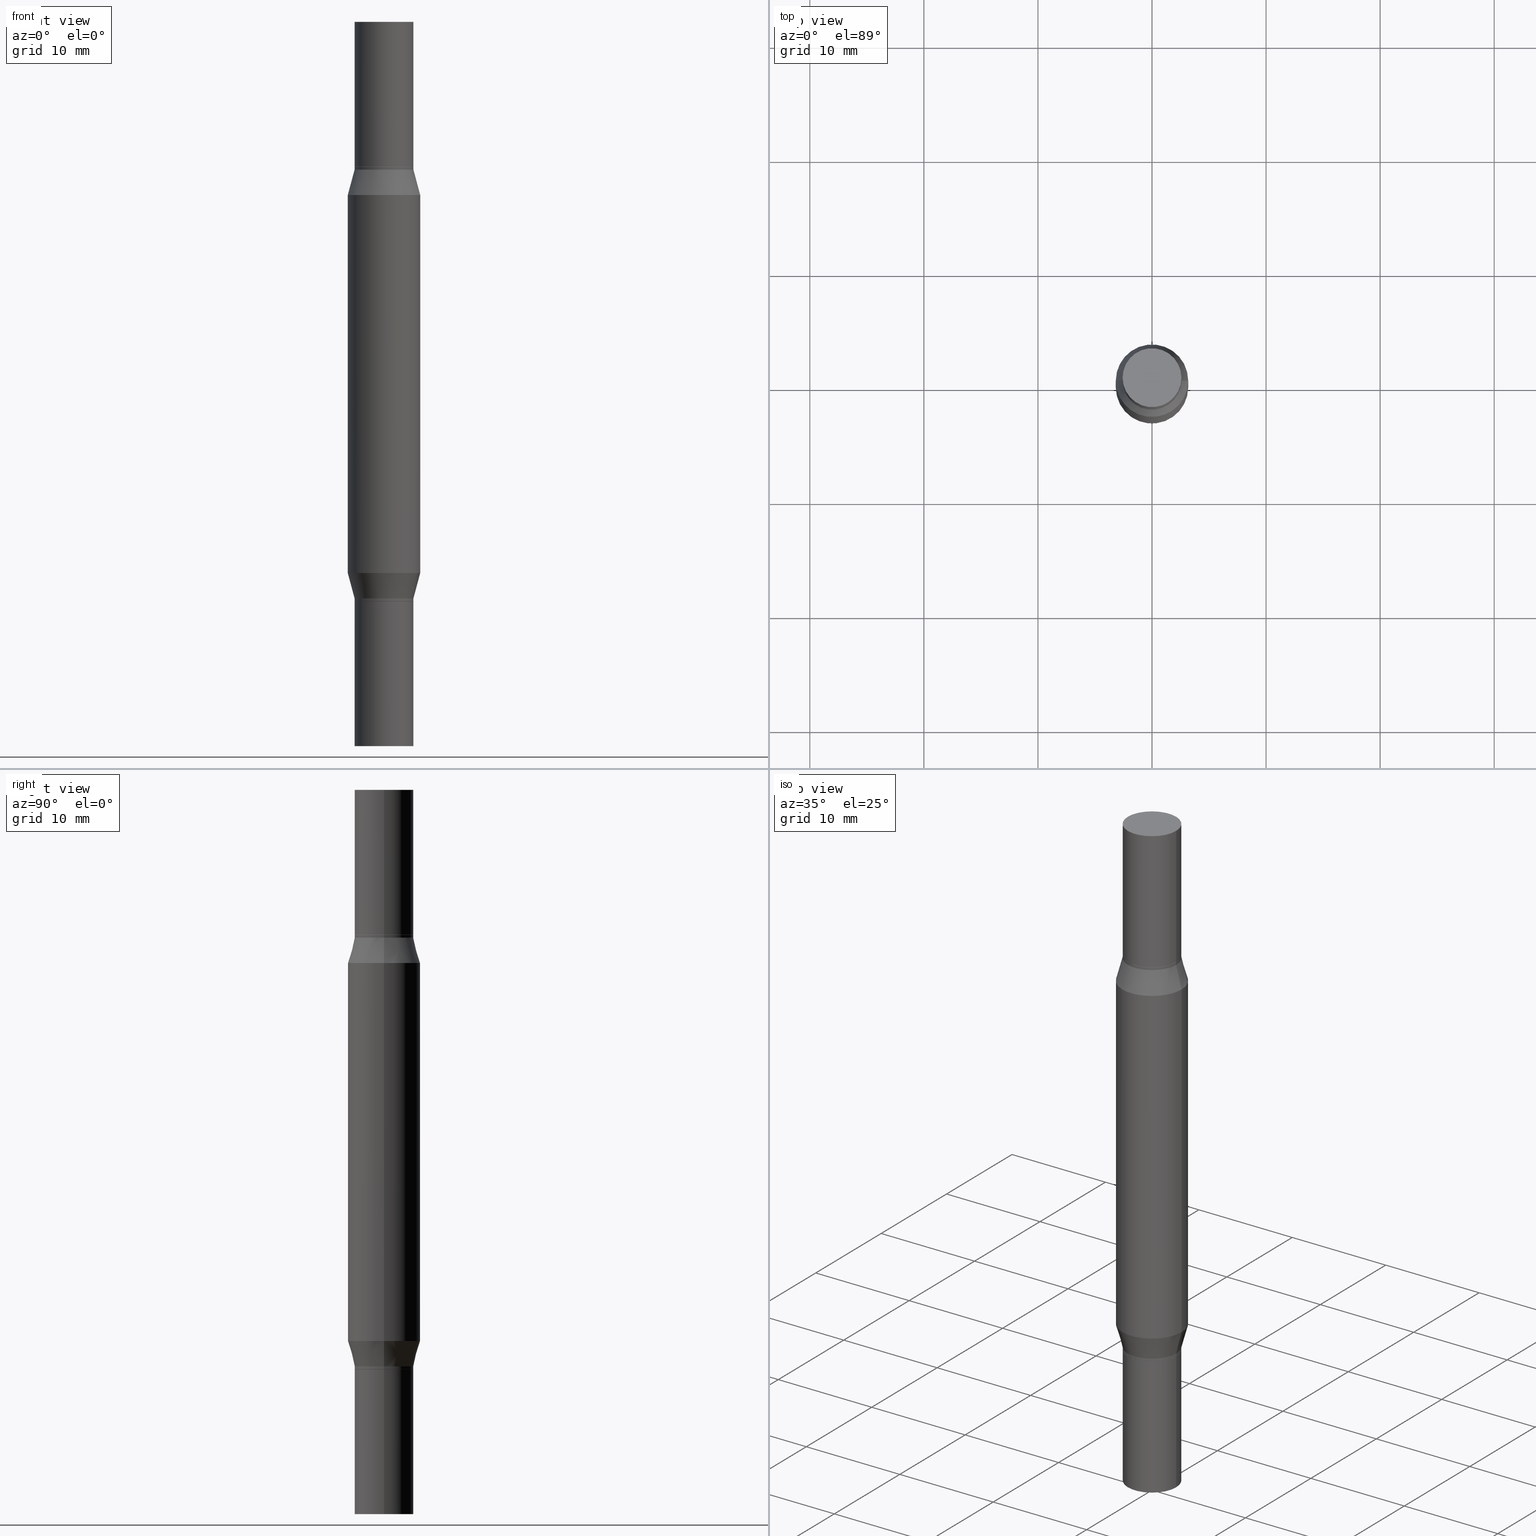
[diagram: canonical four-view strip — front | top / right | iso, engineering-drawing reading convention]
A machine part, canonical four-view strip (front | top / right | iso — engineering-drawing reading convention). The complete STEP part file that produces these views, byte-faithful:
ISO-10303-21;
HEADER;
FILE_DESCRIPTION (( 'STEP AP203' ),
    '1' );
FILE_NAME ('31523.STEP',
    '2024-03-04T16:02:08',
    ( '' ),
    ( '' ),
    'SwSTEP 2.0',
    'SolidWorks 2023',
    '' );
FILE_SCHEMA (( 'CONFIG_CONTROL_DESIGN' ));
ENDSEC;

DATA;
#1 = EDGE_LOOP ( 'NONE', ( #351, #501, #699, #315 ) ) ;
#2 = ADVANCED_FACE ( 'NONE', ( #979 ), #370, .T. ) ;
#3 = CARTESIAN_POINT ( 'NONE',  ( 0.1015500000000000708, -9.437823207026904147E-15, -2.500000000000000000 ) ) ;
#4 = CARTESIAN_POINT ( 'NONE',  ( -0.1015499999999997377, -1.067146257407934882E-15, -0.5099999999999994538 ) ) ;
#5 = AXIS2_PLACEMENT_3D ( 'NONE', #761, #974, #894 ) ;
#6 = VECTOR ( 'NONE', #285, 39.37007874015748143 ) ;
#7 = EDGE_LOOP ( 'NONE', ( #18, #908 ) ) ;
#8 = VERTEX_POINT ( 'NONE', #3 ) ;
#9 = LOCAL_TIME ( 11, 2, 8.000000000000000000, #423 ) ;
#10 = EDGE_CURVE ( 'NONE', #122, #153, #916, .T. ) ;
#11 = CARTESIAN_POINT ( 'NONE',  ( 0.1010500000000000703, -2.451126230913283934E-15, -0.4999999999999996114 ) ) ;
#12 = EDGE_CURVE ( 'NONE', #8, #252, #117, .T. ) ;
#13 = EDGE_LOOP ( 'NONE', ( #859, #776 ) ) ;
#14 = ORIENTED_EDGE ( 'NONE', *, *, #829, .F. ) ;
#15 = ADVANCED_FACE ( 'NONE', ( #447 ), #673, .T. ) ;
#16 = CARTESIAN_POINT ( 'NONE',  ( 0.1250000000000000000, -2.958877117868543782E-15, -0.5975165914374901410 ) ) ;
#17 = EDGE_CURVE ( 'NONE', #272, #300, #909, .T. ) ;
#18 = ORIENTED_EDGE ( 'NONE', *, *, #331, .T. ) ;
#19 = VERTEX_POINT ( 'NONE', #531 ) ;
#20 = DIRECTION ( 'NONE',  ( 1.000000000000000000, -6.982962677686269866E-15, 0.000000000000000000 ) ) ;
#21 = CC_DESIGN_PERSON_AND_ORGANIZATION_ASSIGNMENT ( #792, #270, ( #642 ) ) ;
#22 = ORIENTED_EDGE ( 'NONE', *, *, #206, .T. ) ;
#23 = DIRECTION ( 'NONE',  ( 2.438088387897959208E-29, 3.491805094961123683E-15, 1.000000000000000000 ) ) ;
#24 = ORIENTED_EDGE ( 'NONE', *, *, #59, .T. ) ;
#25 = CLOSED_SHELL ( 'NONE', ( #941, #579, #905, #329 ) ) ;
#26 = FACE_OUTER_BOUND ( 'NONE', #368, .T. ) ;
#27 = AXIS2_PLACEMENT_3D ( 'NONE', #847, #832, #394 ) ;
#28 = EDGE_LOOP ( 'NONE', ( #834, #34 ) ) ;
#29 = DIRECTION ( 'NONE',  ( 1.000000000000000000, -6.982962677686268288E-15, 0.000000000000000000 ) ) ;
#30 = EDGE_CURVE ( 'NONE', #392, #398, #489, .T. ) ;
#31 = ORIENTED_EDGE ( 'NONE', *, *, #476, .T. ) ;
#32 = EDGE_CURVE ( 'NONE', #944, #554, #898, .T. ) ;
#33 = CYLINDRICAL_SURFACE ( 'NONE', #511, 0.1015500000000000708 ) ;
#34 = ORIENTED_EDGE ( 'NONE', *, *, #169, .F. ) ;
#35 = DIRECTION ( 'NONE',  ( -2.445468806185136597E-29, -3.491805094961124077E-15, -1.000000000000000000 ) ) ;
#36 = ORIENTED_EDGE ( 'NONE', *, *, #444, .T. ) ;
#37 = DIRECTION ( 'NONE',  ( -2.445468806185136597E-29, -3.491805094961124077E-15, -1.000000000000000000 ) ) ;
#38 = DIRECTION ( 'NONE',  ( -2.445468806185136597E-29, -3.491805094961124077E-15, -1.000000000000000000 ) ) ;
#39 = ORIENTED_EDGE ( 'NONE', *, *, #395, .T. ) ;
#40 = DIRECTION ( 'NONE',  ( 1.000000000000000000, -6.982962677686265922E-15, 0.000000000000000000 ) ) ;
#41 = AXIS2_PLACEMENT_3D ( 'NONE', #556, #442, #136 ) ;
#42 = VECTOR ( 'NONE', #926, 39.37007874015748143 ) ;
#43 = AXIS2_PLACEMENT_3D ( 'NONE', #365, #897, #882 ) ;
#44 = FACE_OUTER_BOUND ( 'NONE', #259, .T. ) ;
#45 = APPLICATION_PROTOCOL_DEFINITION ( 'international standard', 'config_control_design', 1994, #264 ) ;
#46 = CC_DESIGN_PERSON_AND_ORGANIZATION_ASSIGNMENT ( #797, #719, ( #951 ) ) ;
#47 = DIRECTION ( 'NONE',  ( 1.000000000000000000, -6.982962677686266711E-15, 0.000000000000000000 ) ) ;
#48 = ORIENTED_EDGE ( 'NONE', *, *, #231, .T. ) ;
#49 = DIRECTION ( 'NONE',  ( 1.000000000000000000, 0.000000000000000000, 0.000000000000000000 ) ) ;
#50 = FACE_OUTER_BOUND ( 'NONE', #28, .T. ) ;
#51 = DIRECTION ( 'NONE',  ( 0.7071067811865595631, -7.406779323393320831E-15, -0.7071067811865354713 ) ) ;
#52 = ADVANCED_FACE ( 'NONE', ( #83 ), #378, .F. ) ;
#53 = ORIENTED_EDGE ( 'NONE', *, *, #17, .T. ) ;
#54 = DATE_AND_TIME ( #208, #246 ) ;
#55 = CARTESIAN_POINT ( 'NONE',  ( 0.1015499999999997377, -2.489535763201737721E-15, -0.5099999999999994538 ) ) ;
#56 = VECTOR ( 'NONE', #666, 39.37007874015748143 ) ;
#57 = PLANE ( 'NONE',  #827 ) ;
#58 = VECTOR ( 'NONE', #144, 39.37007874015748143 ) ;
#59 = EDGE_CURVE ( 'NONE', #252, #607, #424, .T. ) ;
#60 = APPLICATION_PROTOCOL_DEFINITION ( 'international standard', 'config_control_design', 1994, #715 ) ;
#61 = CARTESIAN_POINT ( 'NONE',  ( 0.000000000000000000, -8.729108042255335103E-15, -2.499999999999999556 ) ) ;
#62 = EDGE_CURVE ( 'NONE', #912, #384, #576, .T. ) ;
#63 = CARTESIAN_POINT ( 'NONE',  ( 0.1015499999999998765, -9.438227902174374307E-15, -2.499999999999999556 ) ) ;
#64 = DIRECTION ( 'NONE',  ( 1.000000000000000000, -6.982962677686268288E-15, 0.000000000000000000 ) ) ;
#65 = CARTESIAN_POINT ( 'NONE',  ( 7.091198599190897900E-16, 0.1015499999999983360, -0.5000000000000001110 ) ) ;
#66 =( NAMED_UNIT ( * ) PLANE_ANGLE_UNIT ( ) SI_UNIT ( $, .RADIAN. ) );
#67 = DIRECTION ( 'NONE',  ( 1.000000000000000000, -6.982962677686266711E-15, 0.000000000000000000 ) ) ;
#68 = DIRECTION ( 'NONE',  ( -2.438088387897959208E-29, -3.491805094961123683E-15, -1.000000000000000000 ) ) ;
#69 = DIRECTION ( 'NONE',  ( -2.445468806185136877E-29, -3.491805094961123683E-15, -1.000000000000000000 ) ) ;
#70 = ORIENTED_EDGE ( 'NONE', *, *, #237, .F. ) ;
#71 = CARTESIAN_POINT ( 'NONE',  ( -0.1015499999999999875, -1.050560183206867711E-15, -0.5004999999999995008 ) ) ;
#72 = DIRECTION ( 'NONE',  ( -2.445468806185136877E-29, -3.491805094961123683E-15, -1.000000000000000000 ) ) ;
#73 = VECTOR ( 'NONE', #656, 39.37007874015748854 ) ;
#74 = DIRECTION ( 'NONE',  ( 2.445468806185136597E-29, 3.491805094961124077E-15, 1.000000000000000000 ) ) ;
#75 = VECTOR ( 'NONE', #646, 39.37007874015748143 ) ;
#76 = VECTOR ( 'NONE', #51, 39.37007874015748143 ) ;
#77 = ORIENTED_EDGE ( 'NONE', *, *, #266, .F. ) ;
#78 = CARTESIAN_POINT ( 'NONE',  ( 0.000000000000000000, 0.000000000000000000, 0.000000000000000000 ) ) ;
#79 = CARTESIAN_POINT ( 'NONE',  ( 0.000000000000000000, -8.729108042255335103E-15, -2.499999999999999556 ) ) ;
#80 = DIRECTION ( 'NONE',  ( -2.445468806185136597E-29, 3.491481338843145583E-15, 1.000000000000000000 ) ) ;
#81 = ORIENTED_EDGE ( 'NONE', *, *, #592, .T. ) ;
#82 = CARTESIAN_POINT ( 'NONE',  ( 4.890937612370273194E-29, -1.745497852333086357E-15, -0.4999999999999996114 ) ) ;
#83 = FACE_OUTER_BOUND ( 'NONE', #7, .T. ) ;
#84 = FACE_OUTER_BOUND ( 'NONE', #308, .T. ) ;
#85 = CIRCLE ( 'NONE', #632, 0.1250000000000000000 ) ;
#86 = APPROVAL ( #123, 'UNSPECIFIED' ) ;
#87 = AXIS2_PLACEMENT_3D ( 'NONE', #386, #236, #678 ) ;
#88 = ORIENTED_EDGE ( 'NONE', *, *, #385, .F. ) ;
#89 = CIRCLE ( 'NONE', #781, 0.1015499999999997377 ) ;
#90 = CARTESIAN_POINT ( 'NONE',  ( 0.000000000000000000, -8.729108042255335103E-15, -2.499999999999999556 ) ) ;
#91 = ADVANCED_FACE ( 'NONE', ( #946 ), #436, .T. ) ;
#92 = DIRECTION ( 'NONE',  ( 0.2588190451025219607, -5.180148453816008779E-15, -0.9659258262890678681 ) ) ;
#93 = ORIENTED_EDGE ( 'NONE', *, *, #787, .F. ) ;
#94 = VERTEX_POINT ( 'NONE', #215 ) ;
#95 = CARTESIAN_POINT ( 'NONE',  ( 4.866482924308422209E-29, -1.780415903282698911E-15, -0.5099999999999994538 ) ) ;
#96 = ORIENTED_EDGE ( 'NONE', *, *, #929, .F. ) ;
#97 = CARTESIAN_POINT ( 'NONE',  ( -0.1015499999999999875, -1.050560183206867711E-15, -0.5004999999999995008 ) ) ;
#98 = ORIENTED_EDGE ( 'NONE', *, *, #331, .F. ) ;
#99 = DIRECTION ( 'NONE',  ( -2.445468806185136597E-29, 3.491481338843145583E-15, 1.000000000000000000 ) ) ;
#100 = DIRECTION ( 'NONE',  ( -0.2588190451025219607, -1.597197180879709001E-15, -0.9659258262890678681 ) ) ;
#101 = ORIENTED_EDGE ( 'NONE', *, *, #499, .F. ) ;
#102 = VECTOR ( 'NONE', #881, 39.37007874015748143 ) ;
#103 = CARTESIAN_POINT ( 'NONE',  ( -0.1015499999999997377, -1.067146257407934882E-15, -0.5099999999999994538 ) ) ;
#104 = AXIS2_PLACEMENT_3D ( 'NONE', #956, #884, #295 ) ;
#105 = LOCAL_TIME ( 11, 2, 8.000000000000000000, #654 ) ;
#106 = CARTESIAN_POINT ( 'NONE',  ( 0.000000000000000000, -8.729108042255335103E-15, -2.499999999999999556 ) ) ;
#107 = EDGE_CURVE ( 'NONE', #607, #248, #412, .T. ) ;
#108 = ORIENTED_EDGE ( 'NONE', *, *, #929, .T. ) ;
#109 = DIRECTION ( 'NONE',  ( 1.000000000000000000, -6.982962677686263555E-15, 0.000000000000000000 ) ) ;
#110 = VERTEX_POINT ( 'NONE', #71 ) ;
#111 = EDGE_CURVE ( 'NONE', #539, #533, #599, .T. ) ;
#112 = DIRECTION ( 'NONE',  ( 2.445468806185136597E-29, 3.491805094961124077E-15, 1.000000000000000000 ) ) ;
#113 = ADVANCED_FACE ( 'NONE', ( #50 ), #972, .F. ) ;
#114 = DIRECTION ( 'NONE',  ( 1.000000000000000000, -6.982962677686265922E-15, 2.260776888683160832E-33 ) ) ;
#115 = ORIENTED_EDGE ( 'NONE', *, *, #833, .F. ) ;
#116 = APPROVAL_ROLE ( '' ) ;
#117 = CIRCLE ( 'NONE', #5, 0.1015500000000000708 ) ;
#118 = AXIS2_PLACEMENT_3D ( 'NONE', #496, #860, #114 ) ;
#119 = EDGE_CURVE ( 'NONE', #725, #398, #292, .T. ) ;
#120 = AXIS2_PLACEMENT_3D ( 'NONE', #340, #38, #330 ) ;
#121 = DIRECTION ( 'NONE',  ( 1.000000000000000000, -6.982962677686266711E-15, 0.000000000000000000 ) ) ;
#122 = VERTEX_POINT ( 'NONE', #282 ) ;
#123 = APPROVAL_STATUS ( 'not_yet_approved' ) ;
#124 = CYLINDRICAL_SURFACE ( 'NONE', #332, 0.1015499999999998765 ) ;
#125 = CARTESIAN_POINT ( 'NONE',  ( 6.113672015462842613E-29, 4.046951474745467748E-19, 5.463695987328526437E-16 ) ) ;
#126 = ORIENTED_EDGE ( 'NONE', *, *, #476, .F. ) ;
#127 = DATE_AND_TIME ( #138, #667 ) ;
#128 = CARTESIAN_POINT ( 'NONE',  ( -0.1015500000000000708, 7.215561481643822416E-16, -4.995178584153860605E-30 ) ) ;
#129 = CARTESIAN_POINT ( 'NONE',  ( 4.890937612370273194E-29, -6.982962677686291165E-15, -2.000000000000000000 ) ) ;
#130 = ADVANCED_FACE ( 'NONE', ( #892 ), #591, .T. ) ;
#131 = EDGE_LOOP ( 'NONE', ( #630, #339, #938, #88 ) ) ;
#132 = EDGE_CURVE ( 'NONE', #166, #912, #871, .T. ) ;
#133 = DIRECTION ( 'NONE',  ( 2.445468806185136597E-29, 3.491805094961124077E-15, 1.000000000000000000 ) ) ;
#134 = LINE ( 'NONE', #819, #276 ) ;
#135 = AXIS2_PLACEMENT_3D ( 'NONE', #737, #297, #358 ) ;
#136 = DIRECTION ( 'NONE',  ( 1.000000000000000000, -6.982962677686268288E-15, 0.000000000000000000 ) ) ;
#137 = EDGE_CURVE ( 'NONE', #300, #361, #301, .T. ) ;
#138 = CALENDAR_DATE ( 2024, 4, 3 ) ;
#139 = DIRECTION ( 'NONE',  ( -2.445468806185136597E-29, 3.491481338843145583E-15, 1.000000000000000000 ) ) ;
#140 = DIRECTION ( 'NONE',  ( 1.000000000000000000, -6.982962677686264344E-15, 0.000000000000000000 ) ) ;
#141 = CARTESIAN_POINT ( 'NONE',  ( -0.1250000000000000000, -3.506789423832489448E-15, -1.902483408562509304 ) ) ;
#142 = CARTESIAN_POINT ( 'NONE',  ( 6.113672015462842613E-29, 4.046951474745467748E-19, 5.463695987328526437E-16 ) ) ;
#143 = DIRECTION ( 'NONE',  ( 0.2588190451025219607, 1.565188264969616840E-15, 0.9659258262890678681 ) ) ;
#144 = DIRECTION ( 'NONE',  ( -2.445468806185136877E-29, -3.491805094961123683E-15, -1.000000000000000000 ) ) ;
#145 = PRODUCT_RELATED_PRODUCT_CATEGORY ( 'detail', '', ( #642 ) ) ;
#146 = EDGE_LOOP ( 'NONE', ( #77, #161 ) ) ;
#147 = DIRECTION ( 'NONE',  ( 2.445468806185136597E-29, 3.491805094961124077E-15, 1.000000000000000000 ) ) ;
#148 = FACE_OUTER_BOUND ( 'NONE', #873, .T. ) ;
#149 = CIRCLE ( 'NONE', #700, 0.1250000000000000000 ) ;
#150 = ORIENTED_EDGE ( 'NONE', *, *, #707, .T. ) ;
#151 = EDGE_CURVE ( 'NONE', #272, #19, #824, .T. ) ;
#152 = DIRECTION ( 'NONE',  ( -2.445468806185136597E-29, -3.491805094961124077E-15, -1.000000000000000000 ) ) ;
#153 = VERTEX_POINT ( 'NONE', #727 ) ;
#154 = CARTESIAN_POINT ( 'NONE',  ( 0.000000000000000000, 0.000000000000000000, 0.000000000000000000 ) ) ;
#155 = ORIENTED_EDGE ( 'NONE', *, *, #237, .T. ) ;
#156 = ORIENTED_EDGE ( 'NONE', *, *, #119, .F. ) ;
#157 = ADVANCED_FACE ( 'NONE', ( #363 ), #736, .T. ) ;
#158 = ADVANCED_FACE ( 'NONE', ( #652 ), #124, .T. ) ;
#159 = CARTESIAN_POINT ( 'NONE',  ( 0.1015499999999997377, -2.489535763201737721E-15, -0.5099999999999994538 ) ) ;
#160 = CIRCLE ( 'NONE', #968, 0.1010500000000000703 ) ;
#161 = ORIENTED_EDGE ( 'NONE', *, *, #741, .F. ) ;
#162 = AXIS2_PLACEMENT_3D ( 'NONE', #669, #216, #807 ) ;
#163 = ORIENTED_EDGE ( 'NONE', *, *, #914, .T. ) ;
#164 = AXIS2_PLACEMENT_3D ( 'NONE', #256, #99, #697 ) ;
#165 = LENGTH_MEASURE_WITH_UNIT ( LENGTH_MEASURE( 0.02539999999999999897 ), #550 );
#166 = VERTEX_POINT ( 'NONE', #357 ) ;
#167 = DIRECTION ( 'NONE',  ( 2.445468806185136597E-29, 3.491805094961124077E-15, 1.000000000000000000 ) ) ;
#168 = VERTEX_POINT ( 'NONE', #354 ) ;
#169 = EDGE_CURVE ( 'NONE', #252, #8, #396, .T. ) ;
#170 = DIRECTION ( 'NONE',  ( -1.000000000000000000, 6.982962677686265922E-15, -2.260776888683160832E-33 ) ) ;
#171 = ORIENTED_EDGE ( 'NONE', *, *, #962, .F. ) ;
#172 = DIRECTION ( 'NONE',  ( -2.445468806185136597E-29, -3.491805094961124077E-15, -1.000000000000000000 ) ) ;
#173 = ORIENTED_EDGE ( 'NONE', *, *, #524, .F. ) ;
#174 = EDGE_CURVE ( 'NONE', #166, #971, #585, .T. ) ;
#175 = LINE ( 'NONE', #465, #825 ) ;
#176 = AXIS2_PLACEMENT_3D ( 'NONE', #806, #514, #429 ) ;
#177 = ORIENTED_EDGE ( 'NONE', *, *, #760, .F. ) ;
#178 = AXIS2_PLACEMENT_3D ( 'NONE', #801, #661, #440 ) ;
#179 = DIRECTION ( 'NONE',  ( 1.000000000000000000, -6.982962677686268288E-15, 0.000000000000000000 ) ) ;
#180 = CIRCLE ( 'NONE', #306, 0.1015499999999997377 ) ;
#181 = CIRCLE ( 'NONE', #839, 0.1250000000000000000 ) ;
#182 = DIRECTION ( 'NONE',  ( 1.000000000000000000, -6.982962677686265922E-15, 0.000000000000000000 ) ) ;
#183 = ORIENTED_EDGE ( 'NONE', *, *, #174, .F. ) ;
#184 = DIRECTION ( 'NONE',  ( 2.445468806185136597E-29, 3.491805094961124077E-15, 1.000000000000000000 ) ) ;
#185 = DIRECTION ( 'NONE',  ( 1.000000000000000000, -6.982962677686264344E-15, 0.000000000000000000 ) ) ;
#186 = EDGE_LOOP ( 'NONE', ( #484, #413, #694, #126 ) ) ;
#187 = ADVANCED_FACE ( 'NONE', ( #647 ), #738, .F. ) ;
#188 = EDGE_CURVE ( 'NONE', #911, #384, #85, .T. ) ;
#189 = CYLINDRICAL_SURFACE ( 'NONE', #948, 0.1015499999999998765 ) ;
#190 = ADVANCED_FACE ( 'NONE', ( #573 ), #456, .T. ) ;
#191 = CARTESIAN_POINT ( 'NONE',  ( 6.154742442311056095E-29, 5.921988397764257759E-17, 5.463695987328526437E-16 ) ) ;
#192 = VERTEX_POINT ( 'NONE', #578 ) ;
#193 = PERSON_AND_ORGANIZATION ( #963, #718 ) ;
#194 = EDGE_CURVE ( 'NONE', #8, #248, #439, .T. ) ;
#195 = AXIS2_PLACEMENT_3D ( 'NONE', #191, #724, #345 ) ;
#196 = CIRCLE ( 'NONE', #317, 0.1015499999999999875 ) ;
#197 = AXIS2_PLACEMENT_3D ( 'NONE', #403, #629, #930 ) ;
#198 = FACE_OUTER_BOUND ( 'NONE', #915, .T. ) ;
#199 = APPROVAL_PERSON_ORGANIZATION ( #722, #86, #726 ) ;
#200 = EDGE_LOOP ( 'NONE', ( #14, #81, #454, #228 ) ) ;
#201 = DATE_AND_TIME ( #870, #904 ) ;
#202 = CARTESIAN_POINT ( 'NONE',  ( -0.1015500000000000708, -8.032424470581635484E-15, -2.499999999999999556 ) ) ;
#203 = DIRECTION ( 'NONE',  ( -2.445468806185136597E-29, 3.491481338843145583E-15, 1.000000000000000000 ) ) ;
#204 = ORIENTED_EDGE ( 'NONE', *, *, #360, .T. ) ;
#205 = DIRECTION ( 'NONE',  ( 1.000000000000000000, -6.982962677686268288E-15, 0.000000000000000000 ) ) ;
#206 = EDGE_CURVE ( 'NONE', #239, #868, #865, .T. ) ;
#207 = CARTESIAN_POINT ( 'NONE',  ( 4.652463829924389037E-29, -2.086006783157758077E-15, -0.5975165914374901410 ) ) ;
#208 = CALENDAR_DATE ( 2024, 4, 3 ) ;
#209 = DIRECTION ( 'NONE',  ( 1.000000000000000000, -6.982962677686265133E-15, 4.876176775795935232E-29 ) ) ;
#210 = VECTOR ( 'NONE', #69, 39.37007874015748143 ) ;
#211 = DIRECTION ( 'NONE',  ( 1.000000000000000000, -6.982962677686268288E-15, 0.000000000000000000 ) ) ;
#212 = AXIS2_PLACEMENT_3D ( 'NONE', #438, #653, #211 ) ;
#213 = CARTESIAN_POINT ( 'NONE',  ( 0.1015500000000000708, -7.692082537605332736E-15, -2.000000000000000000 ) ) ;
#214 = EDGE_CURVE ( 'NONE', #455, #725, #160, .T. ) ;
#215 = CARTESIAN_POINT ( 'NONE',  ( -0.1015500000000000708, -1.758630069191064586E-16, -0.4999999999999996114 ) ) ;
#216 = DIRECTION ( 'NONE',  ( -2.445468806185136597E-29, 3.491481338843145583E-15, 1.000000000000000000 ) ) ;
#217 = FACE_OUTER_BOUND ( 'NONE', #530, .T. ) ;
#218 = CARTESIAN_POINT ( 'NONE',  ( 0.000000000000000000, 0.000000000000000000, 0.000000000000000000 ) ) ;
#219 = DIRECTION ( 'NONE',  ( -2.445468806185136877E-29, -3.491805094961123683E-15, -1.000000000000000000 ) ) ;
#220 = ORIENTED_EDGE ( 'NONE', *, *, #304, .T. ) ;
#221 = CARTESIAN_POINT ( 'NONE',  ( -0.1015500000000000708, -7.134276864232696503E-15, -2.500000000000000000 ) ) ;
#222 = EDGE_LOOP ( 'NONE', ( #622, #408, #521, #692 ) ) ;
#223 = EDGE_CURVE ( 'NONE', #110, #971, #290, .T. ) ;
#224 = CARTESIAN_POINT ( 'NONE',  ( 0.1010500000000000703, -7.688591056266488151E-15, -2.000000000000000000 ) ) ;
#225 = DIRECTION ( 'NONE',  ( 1.000000000000000000, -6.982962677686269866E-15, 0.000000000000000000 ) ) ;
#226 = CIRCLE ( 'NONE', #730, 0.1010500000000000703 ) ;
#227 = AXIS2_PLACEMENT_3D ( 'NONE', #633, #35, #185 ) ;
#228 = ORIENTED_EDGE ( 'NONE', *, *, #611, .F. ) ;
#229 = DIRECTION ( 'NONE',  ( 1.000000000000000000, -6.982962677686262766E-15, 0.000000000000000000 ) ) ;
#230 = CARTESIAN_POINT ( 'NONE',  ( 4.890937612370273194E-29, -6.982962677686291165E-15, -2.000000000000000000 ) ) ;
#231 = EDGE_CURVE ( 'NONE', #472, #533, #367, .T. ) ;
#232 = EDGE_LOOP ( 'NONE', ( #635, #204, #703, #639 ) ) ;
#233 = CC_DESIGN_PERSON_AND_ORGANIZATION_ASSIGNMENT ( #945, #565, ( #951 ) ) ;
#234 = DIRECTION ( 'NONE',  ( 0.000000000000000000, 1.000000000000000000, -3.491643216902134435E-15 ) ) ;
#235 = DESIGN_CONTEXT ( 'detailed design', #715, 'design' ) ;
#236 = DIRECTION ( 'NONE',  ( -2.438088387897960049E-29, 3.491481338843145188E-15, 1.000000000000000000 ) ) ;
#237 = EDGE_CURVE ( 'NONE', #361, #300, #379, .T. ) ;
#238 = EDGE_LOOP ( 'NONE', ( #705, #220, #443, #177 ) ) ;
#239 = VERTEX_POINT ( 'NONE', #820 ) ;
#240 = LINE ( 'NONE', #815, #795 ) ;
#241 = DIRECTION ( 'NONE',  ( 1.000000000000000000, -6.982962677686264344E-15, 0.000000000000000000 ) ) ;
#242 = CLOSED_SHELL ( 'NONE', ( #480, #113, #157, #679 ) ) ;
#243 = AXIS2_PLACEMENT_3D ( 'NONE', #125, #706, #121 ) ;
#244 = VERTEX_POINT ( 'NONE', #141 ) ;
#245 = AXIS2_PLACEMENT_3D ( 'NONE', #78, #657, #369 ) ;
#246 = LOCAL_TIME ( 11, 2, 8.000000000000000000, #880 ) ;
#247 = DIRECTION ( 'NONE',  ( -0.2588190451025219607, 5.211531920934553408E-15, 0.9659258262890678681 ) ) ;
#248 = VERTEX_POINT ( 'NONE', #213 ) ;
#249 = CARTESIAN_POINT ( 'NONE',  ( 4.866482924308422209E-29, -6.948047864297860305E-15, -1.989999999999999991 ) ) ;
#250 = ORIENTED_EDGE ( 'NONE', *, *, #756, .F. ) ;
#251 = CARTESIAN_POINT ( 'NONE',  ( -0.1015500000000000708, -8.032424470581635484E-15, -2.499999999999999556 ) ) ;
#252 = VERTEX_POINT ( 'NONE', #221 ) ;
#253 = PRODUCT_DEFINITION_SHAPE ( 'NONE', 'NONE',  #641 ) ;
#254 = DIRECTION ( 'NONE',  ( 0.7071067811865595631, -7.406779323393320831E-15, -0.7071067811865354713 ) ) ;
#255 = ORIENTED_EDGE ( 'NONE', *, *, #12, .T. ) ;
#256 = CARTESIAN_POINT ( 'NONE',  ( 4.652463829924389037E-29, -6.642485318454700807E-15, -1.902483408562509304 ) ) ;
#257 = CYLINDRICAL_SURFACE ( 'NONE', #289, 0.1250000000000000000 ) ;
#258 = AXIS2_PLACEMENT_3D ( 'NONE', #510, #275, #742 ) ;
#259 = EDGE_LOOP ( 'NONE', ( #800, #645, #98, #567 ) ) ;
#260 = CIRCLE ( 'NONE', #477, 0.1015499999999999875 ) ;
#261 = CARTESIAN_POINT ( 'NONE',  ( 0.1010500000000000703, -7.688591056266488151E-15, -2.000000000000000000 ) ) ;
#262 =( GEOMETRIC_REPRESENTATION_CONTEXT ( 3 ) GLOBAL_UNCERTAINTY_ASSIGNED_CONTEXT ( ( #597 ) ) GLOBAL_UNIT_ASSIGNED_CONTEXT ( ( #540, #66, #561 ) ) REPRESENTATION_CONTEXT ( 'NONE', 'WORKASPACE' ) );
#263 = DIRECTION ( 'NONE',  ( 2.445468806185136597E-29, 3.491805094961124077E-15, 1.000000000000000000 ) ) ;
#264 = APPLICATION_CONTEXT ( 'configuration controlled 3d designs of mechanical parts and assemblies' ) ;
#265 = ORIENTED_EDGE ( 'NONE', *, *, #434, .T. ) ;
#266 = EDGE_CURVE ( 'NONE', #321, #94, #664, .T. ) ;
#267 = DIRECTION ( 'NONE',  ( 1.000000000000000000, -6.982962677686268288E-15, 0.000000000000000000 ) ) ;
#268 = DIRECTION ( 'NONE',  ( 1.000000000000000000, -6.982962677686262766E-15, 0.000000000000000000 ) ) ;
#269 = EDGE_LOOP ( 'NONE', ( #769, #942 ) ) ;
#270 = PERSON_AND_ORGANIZATION_ROLE ( 'design_owner' ) ;
#271 = CARTESIAN_POINT ( 'NONE',  ( -0.1010500000000000703, -1.051402356432570078E-15, -0.4999999999999996114 ) ) ;
#272 = VERTEX_POINT ( 'NONE', #663 ) ;
#273 = APPROVAL_ROLE ( '' ) ;
#274 = CLOSED_SHELL ( 'NONE', ( #562, #790, #463, #15, #190, #559, #309, #818, #712, #91, #888, #2, #876, #130, #810, #473 ) ) ;
#275 = DIRECTION ( 'NONE',  ( -2.438088387897960049E-29, 3.491481338843145188E-15, 1.000000000000000000 ) ) ;
#276 = VECTOR ( 'NONE', #143, 39.37007874015748854 ) ;
#277 = CARTESIAN_POINT ( 'NONE',  ( 0.1015500000000000708, -9.438227902174375885E-15, -2.499999999999999556 ) ) ;
#278 = ORIENTED_EDGE ( 'NONE', *, *, #976, .F. ) ;
#279 = EDGE_CURVE ( 'NONE', #460, #912, #303, .T. ) ;
#280 = DIRECTION ( 'NONE',  ( -2.445468806185136877E-29, 3.491481338843145188E-15, 1.000000000000000000 ) ) ;
#281 = DIRECTION ( 'NONE',  ( 1.000000000000000000, -6.982962677686266711E-15, 0.000000000000000000 ) ) ;
#282 = CARTESIAN_POINT ( 'NONE',  ( 0.1015500000000000708, -7.087151647715663820E-16, 5.463695987328526437E-16 ) ) ;
#283 = CARTESIAN_POINT ( 'NONE',  ( 4.866482924308422209E-29, -1.780415903282698911E-15, -0.5099999999999994538 ) ) ;
#284 = DIRECTION ( 'NONE',  ( -0.000000000000000000, -3.491643216902134830E-15, -1.000000000000000000 ) ) ;
#285 = DIRECTION ( 'NONE',  ( -2.445468806185136877E-29, -3.491805094961123683E-15, -1.000000000000000000 ) ) ;
#286 = AXIS2_PLACEMENT_3D ( 'NONE', #142, #814, #67 ) ;
#287 = CIRCLE ( 'NONE', #602, 0.1010500000000000703 ) ;
#288 = DIRECTION ( 'NONE',  ( 2.445468806185136597E-29, 3.491805094961124077E-15, 1.000000000000000000 ) ) ;
#289 = AXIS2_PLACEMENT_3D ( 'NONE', #482, #785, #268 ) ;
#290 = LINE ( 'NONE', #758, #210 ) ;
#291 = ORIENTED_EDGE ( 'NONE', *, *, #524, .T. ) ;
#292 = LINE ( 'NONE', #745, #102 ) ;
#293 = CARTESIAN_POINT ( 'NONE',  ( 0.1015499999999998765, -9.438227902174374307E-15, -2.499999999999999556 ) ) ;
#294 = APPROVAL ( #740, 'UNSPECIFIED' ) ;
#295 = DIRECTION ( 'NONE',  ( 1.000000000000000000, -6.982962677686264344E-15, 0.000000000000000000 ) ) ;
#296 = ORIENTED_EDGE ( 'NONE', *, *, #174, .T. ) ;
#297 = DIRECTION ( 'NONE',  ( -2.445468806185136597E-29, -3.491805094961124077E-15, -1.000000000000000000 ) ) ;
#298 = DIRECTION ( 'NONE',  ( -2.445468806185136597E-29, -3.491805094961124077E-15, -1.000000000000000000 ) ) ;
#299 = DIRECTION ( 'NONE',  ( -2.445468806185136877E-29, 3.491481338843145188E-15, 1.000000000000000000 ) ) ;
#300 = VERTEX_POINT ( 'NONE', #878 ) ;
#301 = CIRCLE ( 'NONE', #551, 0.1015500000000000708 ) ;
#302 = DIRECTION ( 'NONE',  ( 0.7071067811865595631, -2.468850131082382884E-15, 0.7071067811865354713 ) ) ;
#303 = CIRCLE ( 'NONE', #714, 0.1250000000000000000 ) ;
#304 = EDGE_CURVE ( 'NONE', #398, #472, #748, .T. ) ;
#305 = PLANE ( 'NONE',  #779 ) ;
#306 = AXIS2_PLACEMENT_3D ( 'NONE', #836, #167, #453 ) ;
#307 = ORIENTED_EDGE ( 'NONE', *, *, #132, .F. ) ;
#308 = EDGE_LOOP ( 'NONE', ( #101, #183, #791, #39 ) ) ;
#309 = ADVANCED_FACE ( 'NONE', ( #217 ), #397, .T. ) ;
#310 = CARTESIAN_POINT ( 'NONE',  ( 0.1015500000000000708, -9.438227902174375885E-15, -2.499999999999999556 ) ) ;
#311 = PLANE ( 'NONE',  #87 ) ;
#312 = ORIENTED_EDGE ( 'NONE', *, *, #782, .T. ) ;
#313 = CARTESIAN_POINT ( 'NONE',  ( 0.1010500000000000703, -2.451126230913283934E-15, -0.4999999999999996114 ) ) ;
#314 = EDGE_LOOP ( 'NONE', ( #452, #545, #796, #907 ) ) ;
#315 = ORIENTED_EDGE ( 'NONE', *, *, #266, .T. ) ;
#316 = DIRECTION ( 'NONE',  ( -2.445468806185136597E-29, 3.491481338843145583E-15, 1.000000000000000000 ) ) ;
#317 = AXIS2_PLACEMENT_3D ( 'NONE', #947, #263, #858 ) ;
#318 = ORIENTED_EDGE ( 'NONE', *, *, #169, .T. ) ;
#319 = AXIS2_PLACEMENT_3D ( 'NONE', #401, #711, #623 ) ;
#320 = CARTESIAN_POINT ( 'NONE',  ( 0.000000000000000000, -8.729108042255335103E-15, -2.499999999999999556 ) ) ;
#321 = VERTEX_POINT ( 'NONE', #816 ) ;
#322 = CYLINDRICAL_SURFACE ( 'NONE', #731, 0.1015500000000000708 ) ;
#323 = EDGE_LOOP ( 'NONE', ( #612, #418, #746, #296 ) ) ;
#324 = FACE_OUTER_BOUND ( 'NONE', #1, .T. ) ;
#325 = EDGE_LOOP ( 'NONE', ( #156, #468, #574, #606 ) ) ;
#326 = LINE ( 'NONE', #277, #903 ) ;
#327 = EDGE_LOOP ( 'NONE', ( #804, #36, #422, #843 ) ) ;
#328 = DIRECTION ( 'NONE',  ( -0.7071067811865595631, 7.493145998870398336E-15, 0.7071067811865354713 ) ) ;
#329 = ADVANCED_FACE ( 'NONE', ( #374 ), #980, .F. ) ;
#330 = DIRECTION ( 'NONE',  ( 1.000000000000000000, -6.982962677686264344E-15, 0.000000000000000000 ) ) ;
#331 = EDGE_CURVE ( 'NONE', #384, #911, #149, .T. ) ;
#332 = AXIS2_PLACEMENT_3D ( 'NONE', #61, #953, #958 ) ;
#333 = ORIENTED_EDGE ( 'NONE', *, *, #137, .F. ) ;
#334 = AXIS2_PLACEMENT_3D ( 'NONE', #584, #542, #762 ) ;
#335 = CARTESIAN_POINT ( 'NONE',  ( -0.1010500000000000703, -6.264959243200708540E-15, -2.000000000000000000 ) ) ;
#336 = CIRCLE ( 'NONE', #811, 0.1015500000000000708 ) ;
#337 = FACE_OUTER_BOUND ( 'NONE', #323, .T. ) ;
#338 = ADVANCED_BREP_SHAPE_REPRESENTATION ( '31523', ( #863, #535, #861, #874, #546, #920 ), #262 ) ;
#339 = ORIENTED_EDGE ( 'NONE', *, *, #410, .T. ) ;
#340 = CARTESIAN_POINT ( 'NONE',  ( 4.890937612370273194E-29, -1.745497852333086357E-15, -0.4999999999999996114 ) ) ;
#341 = ORIENTED_EDGE ( 'NONE', *, *, #111, .T. ) ;
#342 = COORDINATED_UNIVERSAL_TIME_OFFSET ( 5, 0, .BEHIND. ) ;
#343 = CARTESIAN_POINT ( 'NONE',  ( 4.890937612370273194E-29, -1.745497852333086357E-15, -0.4999999999999996114 ) ) ;
#344 = DIRECTION ( 'NONE',  ( -2.445468806185136597E-29, 3.491481338843145583E-15, 1.000000000000000000 ) ) ;
#345 = DIRECTION ( 'NONE',  ( 1.000000000000000000, -6.982962677686265922E-15, 2.260776888683160832E-33 ) ) ;
#346 = PERSON_AND_ORGANIZATION ( #963, #718 ) ;
#347 = AXIS2_PLACEMENT_3D ( 'NONE', #683, #608, #234 ) ;
#348 = CIRCLE ( 'NONE', #885, 0.1015499999999997377 ) ;
#349 = CIRCLE ( 'NONE', #43, 0.1010500000000000703 ) ;
#350 = CARTESIAN_POINT ( 'NONE',  ( 4.890937612370273194E-29, -1.745497852333086357E-15, -0.4999999999999996114 ) ) ;
#351 = ORIENTED_EDGE ( 'NONE', *, *, #592, .F. ) ;
#352 = APPROVAL_DATE_TIME ( #427, #668 ) ;
#353 = DIRECTION ( 'NONE',  ( 2.445468806185136597E-29, 3.491805094961124077E-15, 1.000000000000000000 ) ) ;
#354 = CARTESIAN_POINT ( 'NONE',  ( 0.1015499999999999875, -2.456363614799606928E-15, -0.5004999999999995008 ) ) ;
#355 = DIRECTION ( 'NONE',  ( 1.000000000000000000, -6.982962677686264344E-15, 0.000000000000000000 ) ) ;
#356 = APPROVAL_DATE_TIME ( #127, #294 ) ;
#357 = CARTESIAN_POINT ( 'NONE',  ( 0.1015499999999997377, -2.489535763201737721E-15, -0.5099999999999994538 ) ) ;
#358 = DIRECTION ( 'NONE',  ( 1.000000000000000000, -6.982962677686269866E-15, 0.000000000000000000 ) ) ;
#359 = DIRECTION ( 'NONE',  ( 2.445468806185136597E-29, 3.491805094961124077E-15, 1.000000000000000000 ) ) ;
#360 = EDGE_CURVE ( 'NONE', #533, #244, #899, .T. ) ;
#361 = VERTEX_POINT ( 'NONE', #659 ) ;
#362 = CLOSED_SHELL ( 'NONE', ( #936, #187, #732, #437 ) ) ;
#363 = FACE_OUTER_BOUND ( 'NONE', #786, .T. ) ;
#364 = CIRCLE ( 'NONE', #334, 0.1250000000000000000 ) ;
#365 = CARTESIAN_POINT ( 'NONE',  ( 4.890937612370273194E-29, -6.982962677686291165E-15, -2.000000000000000000 ) ) ;
#366 = CONICAL_SURFACE ( 'NONE', #459, 0.1015499999999997377, 0.2617993877991507401 ) ;
#367 = LINE ( 'NONE', #895, #794 ) ;
#368 = EDGE_LOOP ( 'NONE', ( #250, #487, #613, #307 ) ) ;
#369 = DIRECTION ( 'NONE',  ( 1.000000000000000000, -6.982962677686265133E-15, 4.876176775795935232E-29 ) ) ;
#370 = CYLINDRICAL_SURFACE ( 'NONE', #900, 0.1250000000000000000 ) ;
#371 = DIRECTION ( 'NONE',  ( 1.000000000000000000, -6.982962677686265922E-15, 0.000000000000000000 ) ) ;
#372 = EDGE_LOOP ( 'NONE', ( #93, #48, #150, #173 ) ) ;
#373 = DIRECTION ( 'NONE',  ( 2.445468806185136597E-29, 3.491805094961124077E-15, 1.000000000000000000 ) ) ;
#374 = FACE_OUTER_BOUND ( 'NONE', #146, .T. ) ;
#375 = ORIENTED_EDGE ( 'NONE', *, *, #676, .F. ) ;
#376 = ADVANCED_FACE ( 'NONE', ( #148 ), #523, .T. ) ;
#377 = DIMENSIONAL_EXPONENTS ( 1.000000000000000000, 0.000000000000000000, 0.000000000000000000, 0.000000000000000000, 0.000000000000000000, 0.000000000000000000, 0.000000000000000000 ) ;
#378 = PLANE ( 'NONE',  #347 ) ;
#379 = CIRCLE ( 'NONE', #445, 0.1015500000000000708 ) ;
#380 = CARTESIAN_POINT ( 'NONE',  ( 4.866482924308422209E-29, -6.948047864297860305E-15, -1.989999999999999991 ) ) ;
#381 = CIRCLE ( 'NONE', #753, 0.1015500000000000708 ) ;
#382 = CC_DESIGN_SECURITY_CLASSIFICATION ( #735, ( #951 ) ) ;
#383 = VERTEX_POINT ( 'NONE', #757 ) ;
#384 = VERTEX_POINT ( 'NONE', #960 ) ;
#385 = EDGE_CURVE ( 'NONE', #922, #554, #260, .T. ) ;
#386 = CARTESIAN_POINT ( 'NONE',  ( 4.890937612370273194E-29, -6.982962677686291165E-15, -2.000000000000000000 ) ) ;
#387 = ORIENTED_EDGE ( 'NONE', *, *, #395, .F. ) ;
#388 = ORIENTED_EDGE ( 'NONE', *, *, #360, .F. ) ;
#389 = DIRECTION ( 'NONE',  ( 1.000000000000000000, -6.982962677686264344E-15, 0.000000000000000000 ) ) ;
#390 = ORIENTED_EDGE ( 'NONE', *, *, #583, .F. ) ;
#391 = FACE_OUTER_BOUND ( 'NONE', #238, .T. ) ;
#392 = VERTEX_POINT ( 'NONE', #674 ) ;
#393 = DIRECTION ( 'NONE',  ( 2.445468806185136597E-29, 3.491805094961124077E-15, 1.000000000000000000 ) ) ;
#394 = DIRECTION ( 'NONE',  ( 1.000000000000000000, -6.982962677686264344E-15, 0.000000000000000000 ) ) ;
#395 = EDGE_CURVE ( 'NONE', #912, #460, #364, .T. ) ;
#396 = CIRCLE ( 'NONE', #883, 0.1015500000000000708 ) ;
#397 = CONICAL_SURFACE ( 'NONE', #104, 0.1010500000000000703, 0.7853981633974653764 ) ;
#398 = VERTEX_POINT ( 'NONE', #97 ) ;
#399 = CIRCLE ( 'NONE', #525, 0.1015500000000000708 ) ;
#400 = CC_DESIGN_APPROVAL ( #294, ( #641 ) ) ;
#401 = CARTESIAN_POINT ( 'NONE',  ( 0.000000000000000000, -8.729108042255335103E-15, -2.499999999999999556 ) ) ;
#402 = EDGE_LOOP ( 'NONE', ( #560, #924, #291, #341 ) ) ;
#403 = CARTESIAN_POINT ( 'NONE',  ( 4.652463829924389037E-29, -6.642485318454700807E-15, -1.902483408562509304 ) ) ;
#404 = ORIENTED_EDGE ( 'NONE', *, *, #829, .T. ) ;
#405 = CARTESIAN_POINT ( 'NONE',  ( -0.1250000000000000000, -2.367616978634402645E-15, -1.249999999999999778 ) ) ;
#406 = ADVANCED_FACE ( 'NONE', ( #84 ), #507, .T. ) ;
#407 = DIRECTION ( 'NONE',  ( 2.445468806185136597E-29, 3.491805094961124077E-15, 1.000000000000000000 ) ) ;
#408 = ORIENTED_EDGE ( 'NONE', *, *, #223, .T. ) ;
#409 = CARTESIAN_POINT ( 'NONE',  ( 0.000000000000000000, -8.729108042255335103E-15, -2.499999999999999556 ) ) ;
#410 = EDGE_CURVE ( 'NONE', #383, #944, #226, .T. ) ;
#411 = LINE ( 'NONE', #202, #75 ) ;
#412 = CIRCLE ( 'NONE', #178, 0.1015500000000000708 ) ;
#413 = ORIENTED_EDGE ( 'NONE', *, *, #831, .T. ) ;
#414 = AXIS2_PLACEMENT_3D ( 'NONE', #513, #744, #598 ) ;
#415 = PERSON_AND_ORGANIZATION_ROLE ( 'creator' ) ;
#416 = CONICAL_SURFACE ( 'NONE', #227, 0.1010500000000000703, 0.7853981633974653764 ) ;
#417 = CARTESIAN_POINT ( 'NONE',  ( 4.652463829924389037E-29, -2.086006783157758077E-15, -0.5975165914374901410 ) ) ;
#418 = ORIENTED_EDGE ( 'NONE', *, *, #931, .F. ) ;
#419 = DIRECTION ( 'NONE',  ( 0.000000000000000000, 0.000000000000000000, 1.000000000000000000 ) ) ;
#420 = CARTESIAN_POINT ( 'NONE',  ( -0.1015500000000000708, -7.134276864232696503E-15, -2.000000000000000000 ) ) ;
#421 = CARTESIAN_POINT ( 'NONE',  ( 4.866482924308422209E-29, -1.780415903282698911E-15, -0.5099999999999994538 ) ) ;
#422 = ORIENTED_EDGE ( 'NONE', *, *, #854, .T. ) ;
#423 = COORDINATED_UNIVERSAL_TIME_OFFSET ( 5, 0, .BEHIND. ) ;
#424 = LINE ( 'NONE', #128, #56 ) ;
#425 = DIRECTION ( 'NONE',  ( -2.445468806185136597E-29, 3.491481338843145583E-15, 1.000000000000000000 ) ) ;
#426 = CLOSED_SHELL ( 'NONE', ( #688, #925, #158, #376, #52, #759, #609, #570, #406, #575 ) ) ;
#427 = DATE_AND_TIME ( #961, #9 ) ;
#428 = AXIS2_PLACEMENT_3D ( 'NONE', #637, #184, #389 ) ;
#429 = DIRECTION ( 'NONE',  ( 1.000000000000000000, -6.982962677686266711E-15, 0.000000000000000000 ) ) ;
#430 = FACE_OUTER_BOUND ( 'NONE', #677, .T. ) ;
#431 = DIRECTION ( 'NONE',  ( 2.445468806185136597E-29, 3.491805094961124077E-15, 1.000000000000000000 ) ) ;
#432 = CC_DESIGN_DATE_AND_TIME_ASSIGNMENT ( #54, #864, ( #641 ) ) ;
#433 = DIRECTION ( 'NONE',  ( 1.000000000000000000, -6.982962677686263555E-15, 0.000000000000000000 ) ) ;
#434 = EDGE_CURVE ( 'NONE', #710, #543, #287, .T. ) ;
#435 = MECHANICAL_CONTEXT ( 'NONE', #264, 'mechanical' ) ;
#436 = CYLINDRICAL_SURFACE ( 'NONE', #966, 0.1015499999999998765 ) ;
#437 = ADVANCED_FACE ( 'NONE', ( #537 ), #305, .F. ) ;
#438 = CARTESIAN_POINT ( 'NONE',  ( 4.866482924308422209E-29, -1.780415903282698911E-15, -0.5099999999999994538 ) ) ;
#439 = LINE ( 'NONE', #809, #749 ) ;
#440 = DIRECTION ( 'NONE',  ( 1.000000000000000000, -6.982962677686269866E-15, 0.000000000000000000 ) ) ;
#441 = CARTESIAN_POINT ( 'NONE',  ( -0.1015499999999997377, -6.243076252492984615E-15, -1.989999999999999991 ) ) ;
#442 = DIRECTION ( 'NONE',  ( -2.445468806185136597E-29, -3.491805094961124077E-15, -1.000000000000000000 ) ) ;
#443 = ORIENTED_EDGE ( 'NONE', *, *, #787, .T. ) ;
#444 = EDGE_CURVE ( 'NONE', #868, #239, #348, .T. ) ;
#445 = AXIS2_PLACEMENT_3D ( 'NONE', #82, #359, #225 ) ;
#446 = CYLINDRICAL_SURFACE ( 'NONE', #245, 0.1015499999999998765 ) ;
#447 = FACE_OUTER_BOUND ( 'NONE', #232, .T. ) ;
#448 = VECTOR ( 'NONE', #247, 39.37007874015748854 ) ;
#449 = DIRECTION ( 'NONE',  ( 1.000000000000000000, -6.982962677686264344E-15, 0.000000000000000000 ) ) ;
#450 = DIRECTION ( 'NONE',  ( -2.445468806185136877E-29, -3.491805094961123683E-15, -1.000000000000000000 ) ) ;
#451 = CARTESIAN_POINT ( 'NONE',  ( 4.889714877967180392E-29, -6.981216937016869662E-15, -1.999500000000000055 ) ) ;
#452 = ORIENTED_EDGE ( 'NONE', *, *, #304, .F. ) ;
#453 = DIRECTION ( 'NONE',  ( 1.000000000000000000, -6.982962677686268288E-15, 0.000000000000000000 ) ) ;
#454 = ORIENTED_EDGE ( 'NONE', *, *, #741, .T. ) ;
#455 = VERTEX_POINT ( 'NONE', #11 ) ;
#456 = CONICAL_SURFACE ( 'NONE', #41, 0.1015499999999997377, 0.2617993877991507401 ) ;
#457 = CARTESIAN_POINT ( 'NONE',  ( 6.113672015462842613E-29, 4.046951474745467748E-19, 5.463695987328526437E-16 ) ) ;
#458 = FACE_OUTER_BOUND ( 'NONE', #464, .T. ) ;
#459 = AXIS2_PLACEMENT_3D ( 'NONE', #462, #933, #557 ) ;
#460 = VERTEX_POINT ( 'NONE', #529 ) ;
#461 = ORIENTED_EDGE ( 'NONE', *, *, #62, .T. ) ;
#462 = CARTESIAN_POINT ( 'NONE',  ( 4.866482924308422209E-29, -6.948047864297860305E-15, -1.989999999999999991 ) ) ;
#463 = ADVANCED_FACE ( 'NONE', ( #458 ), #619, .T. ) ;
#464 = EDGE_LOOP ( 'NONE', ( #624, #848, #115, #763 ) ) ;
#465 = CARTESIAN_POINT ( 'NONE',  ( -0.1015499999999997377, -1.083732331609001856E-15, -0.5099999999999994538 ) ) ;
#466 = ORIENTED_EDGE ( 'NONE', *, *, #385, .T. ) ;
#467 = CARTESIAN_POINT ( 'NONE',  ( 0.1250000000000000000, -2.958877117868543782E-15, -0.5975165914374901410 ) ) ;
#468 = ORIENTED_EDGE ( 'NONE', *, *, #214, .F. ) ;
#469 = DIRECTION ( 'NONE',  ( -2.445468806185136597E-29, -3.491805094961124077E-15, -1.000000000000000000 ) ) ;
#470 = ORIENTED_EDGE ( 'NONE', *, *, #886, .T. ) ;
#471 = LINE ( 'NONE', #335, #604 ) ;
#472 = VERTEX_POINT ( 'NONE', #4 ) ;
#473 = ADVANCED_FACE ( 'NONE', ( #690 ), #311, .F. ) ;
#474 = LINE ( 'NONE', #532, #42 ) ;
#475 = AXIS2_PLACEMENT_3D ( 'NONE', #457, #614, #670 ) ;
#476 = EDGE_CURVE ( 'NONE', #554, #239, #474, .T. ) ;
#477 = AXIS2_PLACEMENT_3D ( 'NONE', #451, #80, #371 ) ;
#478 = ORIENTED_EDGE ( 'NONE', *, *, #655, .T. ) ;
#479 = AXIS2_PLACEMENT_3D ( 'NONE', #842, #112, #40 ) ;
#480 = ADVANCED_FACE ( 'NONE', ( #767 ), #322, .T. ) ;
#481 = CYLINDRICAL_SURFACE ( 'NONE', #319, 0.1015500000000000708 ) ;
#482 = CARTESIAN_POINT ( 'NONE',  ( 0.000000000000000000, -8.729108042255335103E-15, -2.499999999999999556 ) ) ;
#483 = EDGE_CURVE ( 'NONE', #192, #472, #180, .T. ) ;
#484 = ORIENTED_EDGE ( 'NONE', *, *, #833, .T. ) ;
#485 = DIRECTION ( 'NONE',  ( -2.445468806185136597E-29, -3.491805094961124077E-15, -1.000000000000000000 ) ) ;
#486 = CARTESIAN_POINT ( 'NONE',  ( 7.091198599190897900E-16, 0.1015499999999930902, -2.000000000000000444 ) ) ;
#487 = ORIENTED_EDGE ( 'NONE', *, *, #499, .T. ) ;
#488 = DIRECTION ( 'NONE',  ( 2.445468806185136597E-29, 3.491805094961124077E-15, 1.000000000000000000 ) ) ;
#489 = CIRCLE ( 'NONE', #698, 0.1015499999999999875 ) ;
#490 = ORIENTED_EDGE ( 'NONE', *, *, #508, .F. ) ;
#491 = VECTOR ( 'NONE', #254, 39.37007874015748143 ) ;
#492 = DATE_TIME_ROLE ( 'classification_date' ) ;
#493 = AXIS2_PLACEMENT_3D ( 'NONE', #777, #485, #267 ) ;
#494 = APPROVAL_PERSON_ORGANIZATION ( #346, #668, #273 ) ;
#495 = ORIENTED_EDGE ( 'NONE', *, *, #434, .F. ) ;
#496 = CARTESIAN_POINT ( 'NONE',  ( 6.154742442311056095E-29, 5.921988397764257759E-17, 5.463695987328526437E-16 ) ) ;
#497 = ORIENTED_EDGE ( 'NONE', *, *, #803, .T. ) ;
#498 = DIRECTION ( 'NONE',  ( -2.445468806185136877E-29, -3.491805094961123683E-15, -1.000000000000000000 ) ) ;
#499 = EDGE_CURVE ( 'NONE', #971, #460, #175, .T. ) ;
#500 = PLANE ( 'NONE',  #716 ) ;
#501 = ORIENTED_EDGE ( 'NONE', *, *, #10, .F. ) ;
#502 = DIRECTION ( 'NONE',  ( 1.000000000000000000, -6.982962677686263555E-15, 0.000000000000000000 ) ) ;
#503 = DIRECTION ( 'NONE',  ( 1.000000000000000000, -6.982962677686269866E-15, 0.000000000000000000 ) ) ;
#504 = DIRECTION ( 'NONE',  ( -2.445468806185136597E-29, 3.491481338843145583E-15, 1.000000000000000000 ) ) ;
#505 = AXIS2_PLACEMENT_3D ( 'NONE', #421, #431, #64 ) ;
#506 = APPROVAL_STATUS ( 'not_yet_approved' ) ;
#507 = CONICAL_SURFACE ( 'NONE', #649, 0.1015499999999997377, 0.2617993877991507401 ) ;
#508 = EDGE_CURVE ( 'NONE', #543, #168, #605, .T. ) ;
#509 = VECTOR ( 'NONE', #72, 39.37007874015748143 ) ;
#510 = CARTESIAN_POINT ( 'NONE',  ( 6.154742442311056095E-29, -8.669888158277696247E-15, -2.500000000000000000 ) ) ;
#511 = AXIS2_PLACEMENT_3D ( 'NONE', #320, #631, #928 ) ;
#512 = LINE ( 'NONE', #63, #621 ) ;
#513 = CARTESIAN_POINT ( 'NONE',  ( 4.890937612370273194E-29, -1.745497852333086357E-15, -0.4999999999999996114 ) ) ;
#514 = DIRECTION ( 'NONE',  ( 2.445468806185136597E-29, 3.491805094961124077E-15, 1.000000000000000000 ) ) ;
#515 = DIRECTION ( 'NONE',  ( -2.438088387897959208E-29, -3.491805094961123683E-15, -1.000000000000000000 ) ) ;
#516 = DIRECTION ( 'NONE',  ( 2.445468806185136597E-29, 3.491805094961124077E-15, 1.000000000000000000 ) ) ;
#517 = ORIENTED_EDGE ( 'NONE', *, *, #107, .T. ) ;
#518 = DIRECTION ( 'NONE',  ( 1.000000000000000000, -6.982962677686266711E-15, 4.876176775795936353E-29 ) ) ;
#519 = CARTESIAN_POINT ( 'NONE',  ( 0.1250000000000000000, -7.515355653165484935E-15, -1.902483408562509304 ) ) ;
#520 = DIRECTION ( 'NONE',  ( -0.000000000000000000, -3.491643216902134830E-15, -1.000000000000000000 ) ) ;
#521 = ORIENTED_EDGE ( 'NONE', *, *, #756, .T. ) ;
#522 = VECTOR ( 'NONE', #450, 39.37007874015748143 ) ;
#523 = CONICAL_SURFACE ( 'NONE', #838, 0.1010500000000000703, 0.7853981633974653764 ) ;
#524 = EDGE_CURVE ( 'NONE', #192, #539, #910, .T. ) ;
#525 = AXIS2_PLACEMENT_3D ( 'NONE', #708, #917, #939 ) ;
#526 = CC_DESIGN_APPROVAL ( #668, ( #951 ) ) ;
#527 = CARTESIAN_POINT ( 'NONE',  ( 4.890937612370273194E-29, -1.745497852333086357E-15, -0.4999999999999996114 ) ) ;
#528 = CARTESIAN_POINT ( 'NONE',  ( 4.889714877967180392E-29, -1.747243754880568118E-15, -0.5004999999999995008 ) ) ;
#529 = CARTESIAN_POINT ( 'NONE',  ( -0.1250000000000000000, -1.228444533436318603E-15, -0.5975165914374901410 ) ) ;
#530 = EDGE_LOOP ( 'NONE', ( #171, #778, #478, #375 ) ) ;
#531 = CARTESIAN_POINT ( 'NONE',  ( -0.1015500000000000708, -1.758630069191064586E-16, 5.463695987328557991E-16 ) ) ;
#532 = CARTESIAN_POINT ( 'NONE',  ( 0.1015499999999998765, -7.091198599190394015E-16, 4.951757515820766066E-30 ) ) ;
#533 = VERTEX_POINT ( 'NONE', #547 ) ;
#534 = FACE_OUTER_BOUND ( 'NONE', #131, .T. ) ;
#535 = MANIFOLD_SOLID_BREP ( 'Mirror1[1]', #426 ) ;
#536 = CONICAL_SURFACE ( 'NONE', #681, 0.1015499999999997377, 0.2617993877991507401 ) ;
#537 = FACE_OUTER_BOUND ( 'NONE', #751, .T. ) ;
#538 = AXIS2_PLACEMENT_3D ( 'NONE', #129, #425, #140 ) ;
#539 = VERTEX_POINT ( 'NONE', #16 ) ;
#540 =( CONVERSION_BASED_UNIT ( 'INCH', #165 ) LENGTH_UNIT ( ) NAMED_UNIT ( #377 ) );
#541 = ORIENTED_EDGE ( 'NONE', *, *, #856, .F. ) ;
#542 = DIRECTION ( 'NONE',  ( 2.445468806185136597E-29, 3.491805094961124077E-15, 1.000000000000000000 ) ) ;
#543 = VERTEX_POINT ( 'NONE', #313 ) ;
#544 = FACE_OUTER_BOUND ( 'NONE', #200, .T. ) ;
#545 = ORIENTED_EDGE ( 'NONE', *, *, #30, .F. ) ;
#546 = MANIFOLD_SOLID_BREP ( 'Combine1', #274 ) ;
#547 = CARTESIAN_POINT ( 'NONE',  ( -0.1250000000000000000, -1.228444533436318603E-15, -0.5975165914374901410 ) ) ;
#548 = EDGE_LOOP ( 'NONE', ( #675, #932, #774, #821 ) ) ;
#549 = CC_DESIGN_PERSON_AND_ORGANIZATION_ASSIGNMENT ( #193, #733, ( #735 ) ) ;
#550 =( LENGTH_UNIT ( ) NAMED_UNIT ( * ) SI_UNIT ( $, .METRE. ) );
#551 = AXIS2_PLACEMENT_3D ( 'NONE', #343, #133, #964 ) ;
#552 = DIRECTION ( 'NONE',  ( -2.445468806185136877E-29, -3.491805094961123683E-15, -1.000000000000000000 ) ) ;
#553 = AXIS2_PLACEMENT_3D ( 'NONE', #106, #695, #620 ) ;
#554 = VERTEX_POINT ( 'NONE', #913 ) ;
#555 = CC_DESIGN_APPROVAL ( #86, ( #735 ) ) ;
#556 = CARTESIAN_POINT ( 'NONE',  ( 4.866482924308422209E-29, -1.780415903282698911E-15, -0.5099999999999994538 ) ) ;
#557 = DIRECTION ( 'NONE',  ( 1.000000000000000000, -6.982962677686263555E-15, 0.000000000000000000 ) ) ;
#558 = CARTESIAN_POINT ( 'NONE',  ( 4.889714877967180392E-29, -1.747243754880568118E-15, -0.5004999999999995008 ) ) ;
#559 = ADVANCED_FACE ( 'NONE', ( #391 ), #780, .T. ) ;
#560 = ORIENTED_EDGE ( 'NONE', *, *, #231, .F. ) ;
#561 =( NAMED_UNIT ( * ) SI_UNIT ( $, .STERADIAN. ) SOLID_ANGLE_UNIT ( ) );
#562 = ADVANCED_FACE ( 'NONE', ( #921 ), #536, .T. ) ;
#563 = FACE_OUTER_BOUND ( 'NONE', #548, .T. ) ;
#564 = EDGE_LOOP ( 'NONE', ( #108, #517 ) ) ;
#565 = PERSON_AND_ORGANIZATION_ROLE ( 'design_supplier' ) ;
#566 = CYLINDRICAL_SURFACE ( 'NONE', #135, 0.1015500000000000708 ) ;
#567 = ORIENTED_EDGE ( 'NONE', *, *, #62, .F. ) ;
#568 = DATE_AND_TIME ( #957, #105 ) ;
#569 = CIRCLE ( 'NONE', #428, 0.1010500000000000703 ) ;
#570 = ADVANCED_FACE ( 'NONE', ( #337 ), #189, .T. ) ;
#571 = CARTESIAN_POINT ( 'NONE',  ( 0.000000000000000000, 0.000000000000000000, 0.000000000000000000 ) ) ;
#572 = FACE_OUTER_BOUND ( 'NONE', #564, .T. ) ;
#573 = FACE_OUTER_BOUND ( 'NONE', #372, .T. ) ;
#574 = ORIENTED_EDGE ( 'NONE', *, *, #676, .T. ) ;
#575 = ADVANCED_FACE ( 'NONE', ( #713 ), #799, .T. ) ;
#576 = LINE ( 'NONE', #875, #601 ) ;
#577 = FACE_OUTER_BOUND ( 'NONE', #186, .T. ) ;
#578 = CARTESIAN_POINT ( 'NONE',  ( 0.1015499999999997377, -2.489535763201737721E-15, -0.5099999999999994538 ) ) ;
#579 = ADVANCED_FACE ( 'NONE', ( #198 ), #720, .F. ) ;
#580 = COORDINATED_UNIVERSAL_TIME_OFFSET ( 5, 0, .BEHIND. ) ;
#581 = DIRECTION ( 'NONE',  ( -2.445468806185136597E-29, -3.491805094961124077E-15, -1.000000000000000000 ) ) ;
#582 = CARTESIAN_POINT ( 'NONE',  ( -0.1010500000000000703, -1.052244529658272643E-15, -0.4999999999999996114 ) ) ;
#583 = EDGE_CURVE ( 'NONE', #19, #272, #586, .T. ) ;
#584 = CARTESIAN_POINT ( 'NONE',  ( 4.652463829924389037E-29, -2.086006783157758077E-15, -0.5975165914374901410 ) ) ;
#585 = CIRCLE ( 'NONE', #505, 0.1015499999999997377 ) ;
#586 = CIRCLE ( 'NONE', #243, 0.1015500000000000708 ) ;
#587 = CIRCLE ( 'NONE', #479, 0.1015499999999999875 ) ;
#588 = DIRECTION ( 'NONE',  ( 1.000000000000000000, -6.982962677686266711E-15, 0.000000000000000000 ) ) ;
#589 = DIRECTION ( 'NONE',  ( -1.000000000000000000, 6.982962677686265922E-15, -2.260776888683160832E-33 ) ) ;
#590 = ORIENTED_EDGE ( 'NONE', *, *, #879, .T. ) ;
#591 = CYLINDRICAL_SURFACE ( 'NONE', #849, 0.1015499999999998765 ) ;
#592 = EDGE_CURVE ( 'NONE', #153, #94, #411, .T. ) ;
#593 = LINE ( 'NONE', #893, #509 ) ;
#594 = DIRECTION ( 'NONE',  ( 0.000000000000000000, 1.000000000000000000, -4.370956789862821150E-15 ) ) ;
#595 = DIRECTION ( 'NONE',  ( -2.445468806185136877E-29, -3.491805094961123683E-15, -1.000000000000000000 ) ) ;
#596 = DIRECTION ( 'NONE',  ( 1.000000000000000000, -6.982962677686265922E-15, 0.000000000000000000 ) ) ;
#597 = UNCERTAINTY_MEASURE_WITH_UNIT (LENGTH_MEASURE( 1.000000000000000082E-05 ), #540, 'distance_accuracy_value', 'NONE');
#598 = DIRECTION ( 'NONE',  ( 1.000000000000000000, -6.982962677686269866E-15, 0.000000000000000000 ) ) ;
#599 = CIRCLE ( 'NONE', #176, 0.1250000000000000000 ) ;
#600 = EDGE_CURVE ( 'NONE', #110, #168, #196, .T. ) ;
#601 = VECTOR ( 'NONE', #498, 39.37007874015748143 ) ;
#602 = AXIS2_PLACEMENT_3D ( 'NONE', #906, #615, #701 ) ;
#603 = CIRCLE ( 'NONE', #734, 0.1015499999999999875 ) ;
#604 = VECTOR ( 'NONE', #328, 39.37007874015748143 ) ;
#605 = LINE ( 'NONE', #610, #491 ) ;
#606 = ORIENTED_EDGE ( 'NONE', *, *, #30, .T. ) ;
#607 = VERTEX_POINT ( 'NONE', #420 ) ;
#608 = DIRECTION ( 'NONE',  ( 0.000000000000000000, 3.491643216902134435E-15, 1.000000000000000000 ) ) ;
#609 = ADVANCED_FACE ( 'NONE', ( #563 ), #416, .T. ) ;
#610 = CARTESIAN_POINT ( 'NONE',  ( 0.1010500000000000703, -2.451126230913283934E-15, -0.4999999999999996114 ) ) ;
#611 = EDGE_CURVE ( 'NONE', #122, #321, #326, .T. ) ;
#612 = ORIENTED_EDGE ( 'NONE', *, *, #223, .F. ) ;
#613 = ORIENTED_EDGE ( 'NONE', *, *, #279, .T. ) ;
#614 = DIRECTION ( 'NONE',  ( 2.445468806185136597E-29, 3.491805094961124077E-15, 1.000000000000000000 ) ) ;
#615 = DIRECTION ( 'NONE',  ( 2.445468806185136597E-29, 3.491805094961124077E-15, 1.000000000000000000 ) ) ;
#616 = ORIENTED_EDGE ( 'NONE', *, *, #879, .F. ) ;
#617 = FACE_OUTER_BOUND ( 'NONE', #402, .T. ) ;
#618 = EDGE_LOOP ( 'NONE', ( #255, #24, #96, #783 ) ) ;
#619 = CONICAL_SURFACE ( 'NONE', #27, 0.1010500000000000703, 0.7853981633974653764 ) ;
#620 = DIRECTION ( 'NONE',  ( 1.000000000000000000, -6.982962677686263555E-15, 0.000000000000000000 ) ) ;
#621 = VECTOR ( 'NONE', #219, 39.37007874015748143 ) ;
#622 = ORIENTED_EDGE ( 'NONE', *, *, #600, .F. ) ;
#623 = DIRECTION ( 'NONE',  ( 1.000000000000000000, -6.982962677686269866E-15, 0.000000000000000000 ) ) ;
#624 = ORIENTED_EDGE ( 'NONE', *, *, #798, .T. ) ;
#625 = DIRECTION ( 'NONE',  ( -2.445468806185136597E-29, 3.491481338843145583E-15, 1.000000000000000000 ) ) ;
#626 = CC_DESIGN_DATE_AND_TIME_ASSIGNMENT ( #568, #492, ( #735 ) ) ;
#627 = EDGE_LOOP ( 'NONE', ( #388, #691, #497, #696 ) ) ;
#628 = CYLINDRICAL_SURFACE ( 'NONE', #869, 0.1015500000000000708 ) ;
#629 = DIRECTION ( 'NONE',  ( -2.445468806185136597E-29, 3.491481338843145583E-15, 1.000000000000000000 ) ) ;
#630 = ORIENTED_EDGE ( 'NONE', *, *, #955, .F. ) ;
#631 = DIRECTION ( 'NONE',  ( -2.445468806185136597E-29, -3.491805094961124077E-15, -1.000000000000000000 ) ) ;
#632 = AXIS2_PLACEMENT_3D ( 'NONE', #658, #284, #949 ) ;
#633 = CARTESIAN_POINT ( 'NONE',  ( 4.890937612370273194E-29, -1.745497852333086357E-15, -0.4999999999999996114 ) ) ;
#634 = VECTOR ( 'NONE', #595, 39.37007874015748143 ) ;
#635 = ORIENTED_EDGE ( 'NONE', *, *, #707, .F. ) ;
#636 = AXIS2_PLACEMENT_3D ( 'NONE', #784, #393, #923 ) ;
#637 = CARTESIAN_POINT ( 'NONE',  ( 4.890937612370273194E-29, -1.745497852333086357E-15, -0.4999999999999996114 ) ) ;
#638 = LINE ( 'NONE', #723, #76 ) ;
#639 = ORIENTED_EDGE ( 'NONE', *, *, #803, .F. ) ;
#640 = SECURITY_CLASSIFICATION_LEVEL ( 'unclassified' ) ;
#641 = PRODUCT_DEFINITION ( 'UNKNOWN', '', #951, #235 ) ;
#642 = PRODUCT ( '31523', '31523', '', ( #435 ) ) ;
#643 = CARTESIAN_POINT ( 'NONE',  ( -0.1010500000000000703, -1.051402356432570078E-15, -0.4999999999999996114 ) ) ;
#644 = CARTESIAN_POINT ( 'NONE',  ( 6.113672015462842613E-29, -8.728703347107864943E-15, -2.500000000000000000 ) ) ;
#645 = ORIENTED_EDGE ( 'NONE', *, *, #856, .T. ) ;
#646 = DIRECTION ( 'NONE',  ( -2.445468806185136877E-29, -3.491805094961123683E-15, -1.000000000000000000 ) ) ;
#647 = FACE_OUTER_BOUND ( 'NONE', #13, .T. ) ;
#648 = ORIENTED_EDGE ( 'NONE', *, *, #151, .F. ) ;
#649 = AXIS2_PLACEMENT_3D ( 'NONE', #772, #469, #29 ) ;
#650 = APPROVAL_DATE_TIME ( #201, #86 ) ;
#651 = CIRCLE ( 'NONE', #197, 0.1250000000000000000 ) ;
#652 = FACE_OUTER_BOUND ( 'NONE', #222, .T. ) ;
#653 = DIRECTION ( 'NONE',  ( 2.445468806185136597E-29, 3.491805094961124077E-15, 1.000000000000000000 ) ) ;
#654 = COORDINATED_UNIVERSAL_TIME_OFFSET ( 5, 0, .BEHIND. ) ;
#655 = EDGE_CURVE ( 'NONE', #398, #392, #603, .T. ) ;
#656 = DIRECTION ( 'NONE',  ( 0.2588190451025219607, -5.180148453816008779E-15, -0.9659258262890678681 ) ) ;
#657 = DIRECTION ( 'NONE',  ( -2.445468806185136597E-29, 3.491481338843145583E-15, 1.000000000000000000 ) ) ;
#658 = CARTESIAN_POINT ( 'NONE',  ( 3.056836007731420185E-29, -4.364351673553931682E-15, -1.249999999999999778 ) ) ;
#659 = CARTESIAN_POINT ( 'NONE',  ( -0.1015500000000000708, -1.758630069191064586E-16, -0.4999999999999996114 ) ) ;
#660 = PERSON_AND_ORGANIZATION ( #963, #718 ) ;
#661 = DIRECTION ( 'NONE',  ( -2.445468806185136597E-29, 3.491481338843145583E-15, 1.000000000000000000 ) ) ;
#662 = CARTESIAN_POINT ( 'NONE',  ( 6.113672015462842613E-29, 4.046951474745467748E-19, 5.463695987328526437E-16 ) ) ;
#663 = CARTESIAN_POINT ( 'NONE',  ( 0.1015500000000000708, -7.087151647715663820E-16, 5.463695987328526437E-16 ) ) ;
#664 = CIRCLE ( 'NONE', #414, 0.1015500000000000708 ) ;
#665 = VECTOR ( 'NONE', #672, 39.37007874015748143 ) ;
#666 = DIRECTION ( 'NONE',  ( -2.445468806185136877E-29, 3.491481338843145188E-15, 1.000000000000000000 ) ) ;
#667 = LOCAL_TIME ( 11, 2, 8.000000000000000000, #580 ) ;
#668 = APPROVAL ( #506, 'UNSPECIFIED' ) ;
#669 = CARTESIAN_POINT ( 'NONE',  ( 4.889714877967180392E-29, -6.981216937016869662E-15, -1.999500000000000055 ) ) ;
#670 = DIRECTION ( 'NONE',  ( 1.000000000000000000, -6.982962677686266711E-15, 0.000000000000000000 ) ) ;
#671 = CARTESIAN_POINT ( 'NONE',  ( 4.866482924308422209E-29, -6.948047864297860305E-15, -1.989999999999999991 ) ) ;
#672 = DIRECTION ( 'NONE',  ( -0.7071067811865595631, 2.382025595312359119E-15, -0.7071067811865354713 ) ) ;
#673 = CYLINDRICAL_SURFACE ( 'NONE', #729, 0.1250000000000000000 ) ;
#674 = CARTESIAN_POINT ( 'NONE',  ( 0.1015499999999999875, -2.456363614799606928E-15, -0.5004999999999995008 ) ) ;
#675 = ORIENTED_EDGE ( 'NONE', *, *, #782, .F. ) ;
#676 = EDGE_CURVE ( 'NONE', #455, #392, #638, .T. ) ;
#677 = EDGE_LOOP ( 'NONE', ( #470, #265 ) ) ;
#678 = DIRECTION ( 'NONE',  ( 1.000000000000000000, -6.982962677686265922E-15, 4.876176775795935793E-29 ) ) ;
#679 = ADVANCED_FACE ( 'NONE', ( #572 ), #500, .F. ) ;
#680 = AXIS2_PLACEMENT_3D ( 'NONE', #218, #139, #518 ) ;
#681 = AXIS2_PLACEMENT_3D ( 'NONE', #249, #344, #109 ) ;
#682 = VECTOR ( 'NONE', #280, 39.37007874015748143 ) ;
#683 = CARTESIAN_POINT ( 'NONE',  ( 0.000000000000000000, 0.000000000000000000, -1.249999999999999778 ) ) ;
#684 = EDGE_CURVE ( 'NONE', #244, #773, #651, .T. ) ;
#685 = DIRECTION ( 'NONE',  ( -2.445468806185136597E-29, 3.491481338843145583E-15, 1.000000000000000000 ) ) ;
#686 = EDGE_LOOP ( 'NONE', ( #390, #590, #155, #977 ) ) ;
#687 = ORIENTED_EDGE ( 'NONE', *, *, #59, .F. ) ;
#688 = ADVANCED_FACE ( 'NONE', ( #44 ), #257, .T. ) ;
#689 = DIRECTION ( 'NONE',  ( -2.445468806185136597E-29, -3.491805094961124077E-15, -1.000000000000000000 ) ) ;
#690 = FACE_OUTER_BOUND ( 'NONE', #269, .T. ) ;
#691 = ORIENTED_EDGE ( 'NONE', *, *, #111, .F. ) ;
#692 = ORIENTED_EDGE ( 'NONE', *, *, #764, .F. ) ;
#693 = FACE_OUTER_BOUND ( 'NONE', #686, .T. ) ;
#694 = ORIENTED_EDGE ( 'NONE', *, *, #206, .F. ) ;
#695 = DIRECTION ( 'NONE',  ( -2.445468806185136597E-29, -3.491805094961124077E-15, -1.000000000000000000 ) ) ;
#696 = ORIENTED_EDGE ( 'NONE', *, *, #976, .T. ) ;
#697 = DIRECTION ( 'NONE',  ( 1.000000000000000000, -6.982962677686270655E-15, 0.000000000000000000 ) ) ;
#698 = AXIS2_PLACEMENT_3D ( 'NONE', #528, #373, #596 ) ;
#699 = ORIENTED_EDGE ( 'NONE', *, *, #611, .T. ) ;
#700 = AXIS2_PLACEMENT_3D ( 'NONE', #891, #520, #594 ) ;
#701 = DIRECTION ( 'NONE',  ( 1.000000000000000000, -6.982962677686264344E-15, 0.000000000000000000 ) ) ;
#702 = CONICAL_SURFACE ( 'NONE', #887, 0.1015499999999997377, 0.2617993877991507401 ) ;
#703 = ORIENTED_EDGE ( 'NONE', *, *, #684, .T. ) ;
#704 = DIRECTION ( 'NONE',  ( -2.445468806185136877E-29, -3.491805094961123683E-15, -1.000000000000000000 ) ) ;
#705 = ORIENTED_EDGE ( 'NONE', *, *, #655, .F. ) ;
#706 = DIRECTION ( 'NONE',  ( 2.445468806185136597E-29, 3.491805094961124077E-15, 1.000000000000000000 ) ) ;
#707 = EDGE_CURVE ( 'NONE', #533, #539, #181, .T. ) ;
#708 = CARTESIAN_POINT ( 'NONE',  ( 4.890937612370273194E-29, -6.982962677686291165E-15, -2.000000000000000000 ) ) ;
#709 = FACE_OUTER_BOUND ( 'NONE', #325, .T. ) ;
#710 = VERTEX_POINT ( 'NONE', #271 ) ;
#711 = DIRECTION ( 'NONE',  ( -2.445468806185136597E-29, -3.491805094961124077E-15, -1.000000000000000000 ) ) ;
#712 = ADVANCED_FACE ( 'NONE', ( #709 ), #969, .T. ) ;
#713 = FACE_OUTER_BOUND ( 'NONE', #845, .T. ) ;
#714 = AXIS2_PLACEMENT_3D ( 'NONE', #207, #74, #281 ) ;
#715 = APPLICATION_CONTEXT ( 'configuration controlled 3d designs of mechanical parts and assemblies' ) ;
#716 = AXIS2_PLACEMENT_3D ( 'NONE', #486, #802, #940 ) ;
#717 = ORIENTED_EDGE ( 'NONE', *, *, #214, .T. ) ;
#718 = ORGANIZATION ( 'UNSPECIFIED', 'UNSPECIFIED', '' ) ;
#719 = PERSON_AND_ORGANIZATION_ROLE ( 'creator' ) ;
#720 = PLANE ( 'NONE',  #118 ) ;
#721 = EDGE_LOOP ( 'NONE', ( #717, #927 ) ) ;
#722 = PERSON_AND_ORGANIZATION ( #963, #718 ) ;
#723 = CARTESIAN_POINT ( 'NONE',  ( 0.1010500000000000703, -2.451126230913283934E-15, -0.4999999999999996114 ) ) ;
#724 = DIRECTION ( 'NONE',  ( -2.438088387897959208E-29, -3.491805094961123683E-15, -1.000000000000000000 ) ) ;
#725 = VERTEX_POINT ( 'NONE', #643 ) ;
#726 = APPROVAL_ROLE ( '' ) ;
#727 = CARTESIAN_POINT ( 'NONE',  ( -0.1015500000000000708, -1.758630069191064586E-16, 5.463695987328557991E-16 ) ) ;
#728 = FACE_OUTER_BOUND ( 'NONE', #721, .T. ) ;
#729 = AXIS2_PLACEMENT_3D ( 'NONE', #79, #298, #229 ) ;
#730 = AXIS2_PLACEMENT_3D ( 'NONE', #230, #316, #241 ) ;
#731 = AXIS2_PLACEMENT_3D ( 'NONE', #154, #625, #775 ) ;
#732 = ADVANCED_FACE ( 'NONE', ( #943 ), #566, .T. ) ;
#733 = PERSON_AND_ORGANIZATION_ROLE ( 'classification_officer' ) ;
#734 = AXIS2_PLACEMENT_3D ( 'NONE', #558, #488, #182 ) ;
#735 = SECURITY_CLASSIFICATION ( '', '', #640 ) ;
#736 = CYLINDRICAL_SURFACE ( 'NONE', #680, 0.1015500000000000708 ) ;
#737 = CARTESIAN_POINT ( 'NONE',  ( 0.000000000000000000, -8.729108042255335103E-15, -2.499999999999999556 ) ) ;
#738 = PLANE ( 'NONE',  #195 ) ;
#739 = DIRECTION ( 'NONE',  ( -0.2588190451025219607, -1.597197180879709001E-15, -0.9659258262890678681 ) ) ;
#740 = APPROVAL_STATUS ( 'not_yet_approved' ) ;
#741 = EDGE_CURVE ( 'NONE', #94, #321, #381, .T. ) ;
#742 = DIRECTION ( 'NONE',  ( 1.000000000000000000, -6.982962677686265922E-15, 4.876176775795935793E-29 ) ) ;
#743 = CARTESIAN_POINT ( 'NONE',  ( 4.890937612370273194E-29, -1.745497852333086357E-15, -0.4999999999999996114 ) ) ;
#744 = DIRECTION ( 'NONE',  ( 2.445468806185136597E-29, 3.491805094961124077E-15, 1.000000000000000000 ) ) ;
#745 = CARTESIAN_POINT ( 'NONE',  ( -0.1010500000000000703, -1.052244529658272643E-15, -0.4999999999999996114 ) ) ;
#746 = ORIENTED_EDGE ( 'NONE', *, *, #764, .T. ) ;
#747 = FACE_OUTER_BOUND ( 'NONE', #327, .T. ) ;
#748 = LINE ( 'NONE', #975, #58 ) ;
#749 = VECTOR ( 'NONE', #299, 39.37007874015748143 ) ;
#750 = VECTOR ( 'NONE', #92, 39.37007874015748854 ) ;
#751 = EDGE_LOOP ( 'NONE', ( #333, #70 ) ) ;
#752 = CC_DESIGN_PERSON_AND_ORGANIZATION_ASSIGNMENT ( #660, #415, ( #641 ) ) ;
#753 = AXIS2_PLACEMENT_3D ( 'NONE', #959, #353, #503 ) ;
#754 = LINE ( 'NONE', #293, #634 ) ;
#755 = DIRECTION ( 'NONE',  ( 1.000000000000000000, -6.982962677686262766E-15, 0.000000000000000000 ) ) ;
#756 = EDGE_CURVE ( 'NONE', #971, #166, #89, .T. ) ;
#757 = CARTESIAN_POINT ( 'NONE',  ( -0.1010500000000000703, -6.262310016026598917E-15, -2.000000000000000000 ) ) ;
#758 = CARTESIAN_POINT ( 'NONE',  ( -0.1015499999999998765, -8.032424470581637062E-15, -2.499999999999999556 ) ) ;
#759 = ADVANCED_FACE ( 'NONE', ( #430 ), #877, .F. ) ;
#760 = EDGE_CURVE ( 'NONE', #392, #192, #512, .T. ) ;
#761 = CARTESIAN_POINT ( 'NONE',  ( 6.113672015462842613E-29, -8.728703347107864943E-15, -2.500000000000000000 ) ) ;
#762 = DIRECTION ( 'NONE',  ( 1.000000000000000000, -6.982962677686266711E-15, 0.000000000000000000 ) ) ;
#763 = ORIENTED_EDGE ( 'NONE', *, *, #32, .F. ) ;
#764 = EDGE_CURVE ( 'NONE', #168, #166, #754, .T. ) ;
#765 = VECTOR ( 'NONE', #302, 39.37007874015748143 ) ;
#766 = CONICAL_SURFACE ( 'NONE', #538, 0.1010500000000000703, 0.7853981633974653764 ) ;
#767 = FACE_OUTER_BOUND ( 'NONE', #618, .T. ) ;
#768 = ORIENTED_EDGE ( 'NONE', *, *, #854, .F. ) ;
#769 = ORIENTED_EDGE ( 'NONE', *, *, #798, .F. ) ;
#770 = CARTESIAN_POINT ( 'NONE',  ( -0.1015499999999997377, -6.226491716133479937E-15, -1.989999999999999991 ) ) ;
#771 = EDGE_LOOP ( 'NONE', ( #826, #466, #31, #902 ) ) ;
#772 = CARTESIAN_POINT ( 'NONE',  ( 4.866482924308422209E-29, -1.780415903282698911E-15, -0.5099999999999994538 ) ) ;
#773 = VERTEX_POINT ( 'NONE', #519 ) ;
#774 = ORIENTED_EDGE ( 'NONE', *, *, #508, .T. ) ;
#775 = DIRECTION ( 'NONE',  ( 1.000000000000000000, -6.982962677686266711E-15, 4.876176775795936353E-29 ) ) ;
#776 = ORIENTED_EDGE ( 'NONE', *, *, #583, .T. ) ;
#777 = CARTESIAN_POINT ( 'NONE',  ( 4.866482924308422209E-29, -1.780415903282698911E-15, -0.5099999999999994538 ) ) ;
#778 = ORIENTED_EDGE ( 'NONE', *, *, #119, .T. ) ;
#779 = AXIS2_PLACEMENT_3D ( 'NONE', #844, #23, #170 ) ;
#780 = CYLINDRICAL_SURFACE ( 'NONE', #553, 0.1015499999999998765 ) ;
#781 = AXIS2_PLACEMENT_3D ( 'NONE', #283, #147, #205 ) ;
#782 = EDGE_CURVE ( 'NONE', #710, #110, #978, .T. ) ;
#783 = ORIENTED_EDGE ( 'NONE', *, *, #194, .F. ) ;
#784 = CARTESIAN_POINT ( 'NONE',  ( 4.890937612370273194E-29, -1.745497852333086357E-15, -0.4999999999999996114 ) ) ;
#785 = DIRECTION ( 'NONE',  ( -2.445468806185136597E-29, -3.491805094961124077E-15, -1.000000000000000000 ) ) ;
#786 = EDGE_LOOP ( 'NONE', ( #687, #318, #855, #841 ) ) ;
#787 = EDGE_CURVE ( 'NONE', #472, #192, #851, .T. ) ;
#788 = LINE ( 'NONE', #770, #448 ) ;
#789 = CARTESIAN_POINT ( 'NONE',  ( 0.000000000000000000, -8.729108042255335103E-15, -2.499999999999999556 ) ) ;
#790 = ADVANCED_FACE ( 'NONE', ( #577 ), #446, .T. ) ;
#791 = ORIENTED_EDGE ( 'NONE', *, *, #132, .T. ) ;
#792 = PERSON_AND_ORGANIZATION ( #963, #718 ) ;
#793 = DIRECTION ( 'NONE',  ( 1.000000000000000000, -6.982962677686263555E-15, 0.000000000000000000 ) ) ;
#794 = VECTOR ( 'NONE', #739, 39.37007874015748854 ) ;
#795 = VECTOR ( 'NONE', #965, 39.37007874015748143 ) ;
#796 = ORIENTED_EDGE ( 'NONE', *, *, #760, .T. ) ;
#797 = PERSON_AND_ORGANIZATION ( #963, #718 ) ;
#798 = EDGE_CURVE ( 'NONE', #944, #383, #349, .T. ) ;
#799 = CYLINDRICAL_SURFACE ( 'NONE', #934, 0.1250000000000000000 ) ;
#800 = ORIENTED_EDGE ( 'NONE', *, *, #279, .F. ) ;
#801 = CARTESIAN_POINT ( 'NONE',  ( 4.890937612370273194E-29, -6.982962677686291165E-15, -2.000000000000000000 ) ) ;
#802 = DIRECTION ( 'NONE',  ( 2.438088387897960049E-29, -3.491481338843145188E-15, -1.000000000000000000 ) ) ;
#803 = EDGE_CURVE ( 'NONE', #539, #773, #240, .T. ) ;
#804 = ORIENTED_EDGE ( 'NONE', *, *, #914, .F. ) ;
#805 = PERSON_AND_ORGANIZATION ( #963, #718 ) ;
#806 = CARTESIAN_POINT ( 'NONE',  ( 4.652463829924389037E-29, -2.086006783157758077E-15, -0.5975165914374901410 ) ) ;
#807 = DIRECTION ( 'NONE',  ( 1.000000000000000000, -6.982962677686265922E-15, 0.000000000000000000 ) ) ;
#808 = DIRECTION ( 'NONE',  ( 1.000000000000000000, -6.982962677686259611E-15, 0.000000000000000000 ) ) ;
#809 = CARTESIAN_POINT ( 'NONE',  ( 0.1015500000000000708, -7.091198599190408807E-16, 4.951757515820776576E-30 ) ) ;
#810 = ADVANCED_FACE ( 'NONE', ( #534 ), #766, .T. ) ;
#811 = AXIS2_PLACEMENT_3D ( 'NONE', #662, #288, #588 ) ;
#812 = CARTESIAN_POINT ( 'NONE',  ( 0.000000000000000000, 0.000000000000000000, 0.000000000000000000 ) ) ;
#813 = APPROVAL_PERSON_ORGANIZATION ( #805, #294, #116 ) ;
#814 = DIRECTION ( 'NONE',  ( 2.445468806185136597E-29, 3.491805094961124077E-15, 1.000000000000000000 ) ) ;
#815 = CARTESIAN_POINT ( 'NONE',  ( 0.1250000000000000000, -9.601978376966118441E-15, -2.499999999999999556 ) ) ;
#816 = CARTESIAN_POINT ( 'NONE',  ( 0.1015500000000000708, -2.454617712252127730E-15, -0.4999999999999996114 ) ) ;
#817 = DIRECTION ( 'NONE',  ( -2.445468806185136597E-29, 3.491481338843145583E-15, 1.000000000000000000 ) ) ;
#818 = ADVANCED_FACE ( 'NONE', ( #728 ), #57, .F. ) ;
#819 = CARTESIAN_POINT ( 'NONE',  ( 0.1015499999999997377, -7.657167724216897932E-15, -1.989999999999999991 ) ) ;
#820 = CARTESIAN_POINT ( 'NONE',  ( 0.1015499999999997377, -7.657167724216897932E-15, -1.989999999999999991 ) ) ;
#821 = ORIENTED_EDGE ( 'NONE', *, *, #931, .T. ) ;
#822 = DIRECTION ( 'NONE',  ( 1.000000000000000000, -6.982962677686265922E-15, 2.260776888683160832E-33 ) ) ;
#823 = CARTESIAN_POINT ( 'NONE',  ( -0.1250000000000000000, -7.871545792533893657E-15, -2.499999999999999556 ) ) ;
#824 = CIRCLE ( 'NONE', #286, 0.1015500000000000708 ) ;
#825 = VECTOR ( 'NONE', #100, 39.37007874015748854 ) ;
#826 = ORIENTED_EDGE ( 'NONE', *, *, #831, .F. ) ;
#827 = AXIS2_PLACEMENT_3D ( 'NONE', #743, #68, #973 ) ;
#828 = CIRCLE ( 'NONE', #164, 0.1250000000000000000 ) ;
#829 = EDGE_CURVE ( 'NONE', #153, #122, #336, .T. ) ;
#830 = CARTESIAN_POINT ( 'NONE',  ( 4.890937612370273194E-29, -1.745497852333086357E-15, -0.4999999999999996114 ) ) ;
#831 = EDGE_CURVE ( 'NONE', #922, #868, #954, .T. ) ;
#832 = DIRECTION ( 'NONE',  ( -2.445468806185136597E-29, 3.491481338843145583E-15, 1.000000000000000000 ) ) ;
#833 = EDGE_CURVE ( 'NONE', #554, #922, #853, .T. ) ;
#834 = ORIENTED_EDGE ( 'NONE', *, *, #12, .F. ) ;
#835 = ORIENTED_EDGE ( 'NONE', *, *, #137, .T. ) ;
#836 = CARTESIAN_POINT ( 'NONE',  ( 4.866482924308422209E-29, -1.780415903282698911E-15, -0.5099999999999994538 ) ) ;
#837 = ORIENTED_EDGE ( 'NONE', *, *, #10, .T. ) ;
#838 = AXIS2_PLACEMENT_3D ( 'NONE', #830, #152, #449 ) ;
#839 = AXIS2_PLACEMENT_3D ( 'NONE', #417, #407, #47 ) ;
#840 = DIRECTION ( 'NONE',  ( 1.000000000000000000, -6.982962677686263555E-15, 0.000000000000000000 ) ) ;
#841 = ORIENTED_EDGE ( 'NONE', *, *, #107, .F. ) ;
#842 = CARTESIAN_POINT ( 'NONE',  ( 4.889714877967180392E-29, -1.747243754880568118E-15, -0.5004999999999995008 ) ) ;
#843 = ORIENTED_EDGE ( 'NONE', *, *, #684, .F. ) ;
#844 = CARTESIAN_POINT ( 'NONE',  ( 7.091198599190897900E-16, 0.1015499999999983360, -0.5000000000000001110 ) ) ;
#845 = EDGE_LOOP ( 'NONE', ( #541, #387, #461, #862 ) ) ;
#846 = CARTESIAN_POINT ( 'NONE',  ( -0.1015499999999999875, -6.259660788852487716E-15, -1.999500000000000055 ) ) ;
#847 = CARTESIAN_POINT ( 'NONE',  ( 4.890937612370273194E-29, -6.982962677686291165E-15, -2.000000000000000000 ) ) ;
#848 = ORIENTED_EDGE ( 'NONE', *, *, #955, .T. ) ;
#849 = AXIS2_PLACEMENT_3D ( 'NONE', #571, #817, #209 ) ;
#850 = AXIS2_PLACEMENT_3D ( 'NONE', #65, #967, #589 ) ;
#851 = CIRCLE ( 'NONE', #212, 0.1015499999999997377 ) ;
#852 = DIRECTION ( 'NONE',  ( -2.445468806185136597E-29, -3.491805094961124077E-15, -1.000000000000000000 ) ) ;
#853 = CIRCLE ( 'NONE', #162, 0.1015499999999999875 ) ;
#854 = EDGE_CURVE ( 'NONE', #239, #773, #134, .T. ) ;
#855 = ORIENTED_EDGE ( 'NONE', *, *, #194, .T. ) ;
#856 = EDGE_CURVE ( 'NONE', #460, #911, #593, .T. ) ;
#857 = LINE ( 'NONE', #251, #918 ) ;
#858 = DIRECTION ( 'NONE',  ( 1.000000000000000000, -6.982962677686265922E-15, 0.000000000000000000 ) ) ;
#859 = ORIENTED_EDGE ( 'NONE', *, *, #151, .T. ) ;
#860 = DIRECTION ( 'NONE',  ( -2.438088387897959208E-29, -3.491805094961123683E-15, -1.000000000000000000 ) ) ;
#861 = MANIFOLD_SOLID_BREP ( 'Mirror1[3]', #362 ) ;
#862 = ORIENTED_EDGE ( 'NONE', *, *, #188, .F. ) ;
#863 = MANIFOLD_SOLID_BREP ( 'Body-Move/Copy2[1]', #242 ) ;
#864 = DATE_TIME_ROLE ( 'creation_date' ) ;
#865 = CIRCLE ( 'NONE', #901, 0.1015499999999997377 ) ;
#866 = DIRECTION ( 'NONE',  ( -2.445468806185136597E-29, -3.491805094961124077E-15, -1.000000000000000000 ) ) ;
#867 = AXIS2_PLACEMENT_3D ( 'NONE', #350, #515, #822 ) ;
#868 = VERTEX_POINT ( 'NONE', #441 ) ;
#869 = AXIS2_PLACEMENT_3D ( 'NONE', #409, #172, #20 ) ;
#870 = CALENDAR_DATE ( 2024, 4, 3 ) ;
#871 = LINE ( 'NONE', #55, #73 ) ;
#872 = DIRECTION ( 'NONE',  ( 1.000000000000000000, -6.982962677686262766E-15, 0.000000000000000000 ) ) ;
#873 = EDGE_LOOP ( 'NONE', ( #495, #312, #896, #490 ) ) ;
#874 = MANIFOLD_SOLID_BREP ( 'Mirror1[4]', #25 ) ;
#875 = CARTESIAN_POINT ( 'NONE',  ( 0.1250000000000000000, -9.601978376966118441E-15, -2.499999999999999556 ) ) ;
#876 = ADVANCED_FACE ( 'NONE', ( #747 ), #366, .T. ) ;
#877 = PLANE ( 'NONE',  #867 ) ;
#878 = CARTESIAN_POINT ( 'NONE',  ( 0.1015500000000000708, -2.454617712252127730E-15, -0.4999999999999996114 ) ) ;
#879 = EDGE_CURVE ( 'NONE', #19, #361, #857, .T. ) ;
#880 = COORDINATED_UNIVERSAL_TIME_OFFSET ( 5, 0, .BEHIND. ) ;
#881 = DIRECTION ( 'NONE',  ( -0.7071067811865595631, 2.382025595312359119E-15, -0.7071067811865354713 ) ) ;
#882 = DIRECTION ( 'NONE',  ( 1.000000000000000000, -6.982962677686264344E-15, 0.000000000000000000 ) ) ;
#883 = AXIS2_PLACEMENT_3D ( 'NONE', #644, #203, #808 ) ;
#884 = DIRECTION ( 'NONE',  ( -2.445468806185136597E-29, -3.491805094961124077E-15, -1.000000000000000000 ) ) ;
#885 = AXIS2_PLACEMENT_3D ( 'NONE', #380, #685, #840 ) ;
#886 = EDGE_CURVE ( 'NONE', #543, #710, #569, .T. ) ;
#887 = AXIS2_PLACEMENT_3D ( 'NONE', #95, #37, #179 ) ;
#888 = ADVANCED_FACE ( 'NONE', ( #617 ), #935, .T. ) ;
#889 = CARTESIAN_POINT ( 'NONE',  ( 0.000000000000000000, -8.729108042255335103E-15, -2.499999999999999556 ) ) ;
#890 = CARTESIAN_POINT ( 'NONE',  ( -0.1015499999999998765, 7.215561481643808611E-16, -4.995178584153850796E-30 ) ) ;
#891 = CARTESIAN_POINT ( 'NONE',  ( 3.056836007731420185E-29, -4.364351673553931682E-15, -1.249999999999999778 ) ) ;
#892 = FACE_OUTER_BOUND ( 'NONE', #771, .T. ) ;
#893 = CARTESIAN_POINT ( 'NONE',  ( -0.1250000000000000000, -7.871545792533893657E-15, -2.499999999999999556 ) ) ;
#894 = DIRECTION ( 'NONE',  ( 1.000000000000000000, -6.982962677686259611E-15, 0.000000000000000000 ) ) ;
#895 = CARTESIAN_POINT ( 'NONE',  ( -0.1015499999999997377, -1.083732331609001856E-15, -0.5099999999999994538 ) ) ;
#896 = ORIENTED_EDGE ( 'NONE', *, *, #600, .T. ) ;
#897 = DIRECTION ( 'NONE',  ( -2.445468806185136597E-29, 3.491481338843145583E-15, 1.000000000000000000 ) ) ;
#898 = LINE ( 'NONE', #224, #765 ) ;
#899 = LINE ( 'NONE', #823, #6 ) ;
#900 = AXIS2_PLACEMENT_3D ( 'NONE', #90, #689, #755 ) ;
#901 = AXIS2_PLACEMENT_3D ( 'NONE', #671, #504, #433 ) ;
#902 = ORIENTED_EDGE ( 'NONE', *, *, #444, .F. ) ;
#903 = VECTOR ( 'NONE', #552, 39.37007874015748143 ) ;
#904 = LOCAL_TIME ( 11, 2, 8.000000000000000000, #342 ) ;
#905 = ADVANCED_FACE ( 'NONE', ( #324 ), #481, .T. ) ;
#906 = CARTESIAN_POINT ( 'NONE',  ( 4.890937612370273194E-29, -1.745497852333086357E-15, -0.4999999999999996114 ) ) ;
#907 = ORIENTED_EDGE ( 'NONE', *, *, #483, .T. ) ;
#908 = ORIENTED_EDGE ( 'NONE', *, *, #188, .T. ) ;
#909 = LINE ( 'NONE', #310, #522 ) ;
#910 = LINE ( 'NONE', #159, #750 ) ;
#911 = VERTEX_POINT ( 'NONE', #405 ) ;
#912 = VERTEX_POINT ( 'NONE', #467 ) ;
#913 = CARTESIAN_POINT ( 'NONE',  ( 0.1015499999999999875, -7.690336796935910444E-15, -1.999500000000000055 ) ) ;
#914 = EDGE_CURVE ( 'NONE', #868, #244, #788, .T. ) ;
#915 = EDGE_LOOP ( 'NONE', ( #837, #404 ) ) ;
#916 = CIRCLE ( 'NONE', #475, 0.1015500000000000708 ) ;
#917 = DIRECTION ( 'NONE',  ( -2.445468806185136597E-29, 3.491481338843145583E-15, 1.000000000000000000 ) ) ;
#918 = VECTOR ( 'NONE', #704, 39.37007874015748143 ) ;
#919 = EDGE_LOOP ( 'NONE', ( #22, #163, #278, #768 ) ) ;
#920 = AXIS2_PLACEMENT_3D ( 'NONE', #812, #419, #49 ) ;
#921 = FACE_OUTER_BOUND ( 'NONE', #919, .T. ) ;
#922 = VERTEX_POINT ( 'NONE', #846 ) ;
#923 = DIRECTION ( 'NONE',  ( 1.000000000000000000, -6.982962677686264344E-15, 0.000000000000000000 ) ) ;
#924 = ORIENTED_EDGE ( 'NONE', *, *, #483, .F. ) ;
#925 = ADVANCED_FACE ( 'NONE', ( #26 ), #702, .T. ) ;
#926 = DIRECTION ( 'NONE',  ( -2.445468806185136877E-29, 3.491481338843145188E-15, 1.000000000000000000 ) ) ;
#927 = ORIENTED_EDGE ( 'NONE', *, *, #962, .T. ) ;
#928 = DIRECTION ( 'NONE',  ( 1.000000000000000000, -6.982962677686269866E-15, 0.000000000000000000 ) ) ;
#929 = EDGE_CURVE ( 'NONE', #248, #607, #399, .T. ) ;
#930 = DIRECTION ( 'NONE',  ( 1.000000000000000000, -6.982962677686270655E-15, 0.000000000000000000 ) ) ;
#931 = EDGE_CURVE ( 'NONE', #168, #110, #587, .T. ) ;
#932 = ORIENTED_EDGE ( 'NONE', *, *, #886, .F. ) ;
#933 = DIRECTION ( 'NONE',  ( -2.445468806185136597E-29, 3.491481338843145583E-15, 1.000000000000000000 ) ) ;
#934 = AXIS2_PLACEMENT_3D ( 'NONE', #937, #852, #872 ) ;
#935 = CONICAL_SURFACE ( 'NONE', #493, 0.1015499999999997377, 0.2617993877991507401 ) ;
#936 = ADVANCED_FACE ( 'NONE', ( #693 ), #33, .T. ) ;
#937 = CARTESIAN_POINT ( 'NONE',  ( 0.000000000000000000, -8.729108042255335103E-15, -2.499999999999999556 ) ) ;
#938 = ORIENTED_EDGE ( 'NONE', *, *, #32, .T. ) ;
#939 = DIRECTION ( 'NONE',  ( 1.000000000000000000, -6.982962677686269866E-15, 0.000000000000000000 ) ) ;
#940 = DIRECTION ( 'NONE',  ( -1.000000000000000000, 6.982962677686265922E-15, -4.876176775795935793E-29 ) ) ;
#941 = ADVANCED_FACE ( 'NONE', ( #544 ), #628, .T. ) ;
#942 = ORIENTED_EDGE ( 'NONE', *, *, #410, .F. ) ;
#943 = FACE_OUTER_BOUND ( 'NONE', #950, .T. ) ;
#944 = VERTEX_POINT ( 'NONE', #261 ) ;
#945 = PERSON_AND_ORGANIZATION ( #963, #718 ) ;
#946 = FACE_OUTER_BOUND ( 'NONE', #314, .T. ) ;
#947 = CARTESIAN_POINT ( 'NONE',  ( 4.889714877967180392E-29, -1.747243754880568118E-15, -0.5004999999999995008 ) ) ;
#948 = AXIS2_PLACEMENT_3D ( 'NONE', #789, #866, #793 ) ;
#949 = DIRECTION ( 'NONE',  ( 0.000000000000000000, 1.000000000000000000, -4.370956789862821150E-15 ) ) ;
#950 = EDGE_LOOP ( 'NONE', ( #616, #648, #53, #835 ) ) ;
#951 = PRODUCT_DEFINITION_FORMATION_WITH_SPECIFIED_SOURCE ( 'ANY', '', #642, .NOT_KNOWN. ) ;
#952 = SHAPE_DEFINITION_REPRESENTATION ( #253, #338 ) ;
#953 = DIRECTION ( 'NONE',  ( -2.445468806185136597E-29, -3.491805094961124077E-15, -1.000000000000000000 ) ) ;
#954 = LINE ( 'NONE', #890, #682 ) ;
#955 = EDGE_CURVE ( 'NONE', #383, #922, #471, .T. ) ;
#956 = CARTESIAN_POINT ( 'NONE',  ( 4.890937612370273194E-29, -1.745497852333086357E-15, -0.4999999999999996114 ) ) ;
#957 = CALENDAR_DATE ( 2024, 4, 3 ) ;
#958 = DIRECTION ( 'NONE',  ( 1.000000000000000000, -6.982962677686263555E-15, 0.000000000000000000 ) ) ;
#959 = CARTESIAN_POINT ( 'NONE',  ( 4.890937612370273194E-29, -1.745497852333086357E-15, -0.4999999999999996114 ) ) ;
#960 = CARTESIAN_POINT ( 'NONE',  ( 0.1250000000000000000, -4.098049563066627035E-15, -1.249999999999999778 ) ) ;
#961 = CALENDAR_DATE ( 2024, 4, 3 ) ;
#962 = EDGE_CURVE ( 'NONE', #725, #455, #970, .T. ) ;
#963 = PERSON ( 'UNSPECIFIED', 'UNSPECIFIED', 'UNSPECIFIED', ('UNSPECIFIED'), ('UNSPECIFIED'), ('UNSPECIFIED') ) ;
#964 = DIRECTION ( 'NONE',  ( 1.000000000000000000, -6.982962677686269866E-15, 0.000000000000000000 ) ) ;
#965 = DIRECTION ( 'NONE',  ( -2.445468806185136877E-29, -3.491805094961123683E-15, -1.000000000000000000 ) ) ;
#966 = AXIS2_PLACEMENT_3D ( 'NONE', #889, #581, #502 ) ;
#967 = DIRECTION ( 'NONE',  ( 2.438088387897959208E-29, 3.491805094961123683E-15, 1.000000000000000000 ) ) ;
#968 = AXIS2_PLACEMENT_3D ( 'NONE', #527, #516, #355 ) ;
#969 = CONICAL_SURFACE ( 'NONE', #120, 0.1010500000000000703, 0.7853981633974653764 ) ;
#970 = CIRCLE ( 'NONE', #636, 0.1010500000000000703 ) ;
#971 = VERTEX_POINT ( 'NONE', #103 ) ;
#972 = PLANE ( 'NONE',  #258 ) ;
#973 = DIRECTION ( 'NONE',  ( 1.000000000000000000, -6.982962677686265922E-15, 2.260776888683160832E-33 ) ) ;
#974 = DIRECTION ( 'NONE',  ( -2.445468806185136597E-29, 3.491481338843145583E-15, 1.000000000000000000 ) ) ;
#975 = CARTESIAN_POINT ( 'NONE',  ( -0.1015499999999998765, -8.032424470581637062E-15, -2.499999999999999556 ) ) ;
#976 = EDGE_CURVE ( 'NONE', #773, #244, #828, .T. ) ;
#977 = ORIENTED_EDGE ( 'NONE', *, *, #17, .F. ) ;
#978 = LINE ( 'NONE', #582, #665 ) ;
#979 = FACE_OUTER_BOUND ( 'NONE', #627, .T. ) ;
#980 = PLANE ( 'NONE',  #850 ) ;
ENDSEC;
END-ISO-10303-21;
